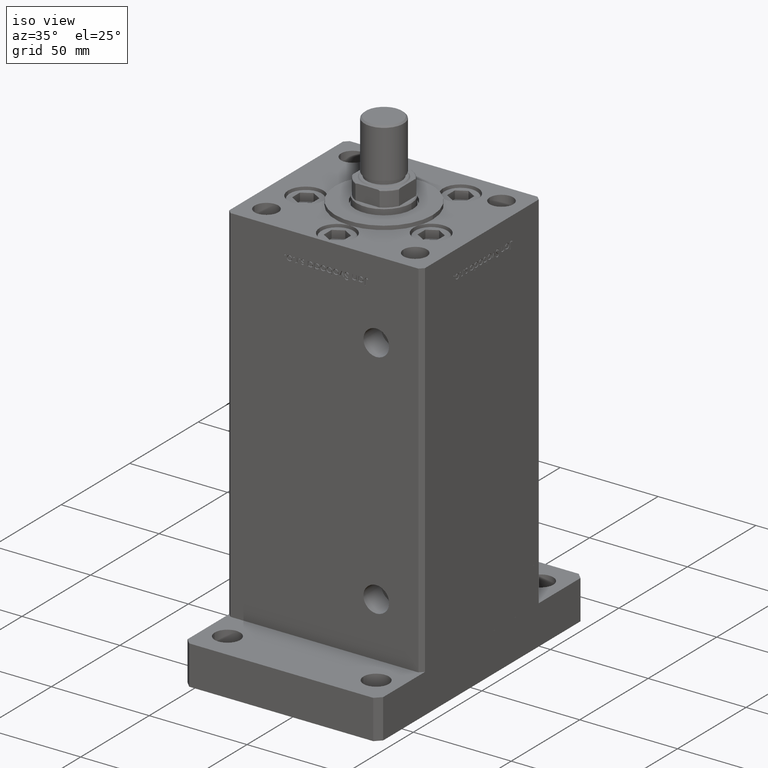
[diagram: clean part render]
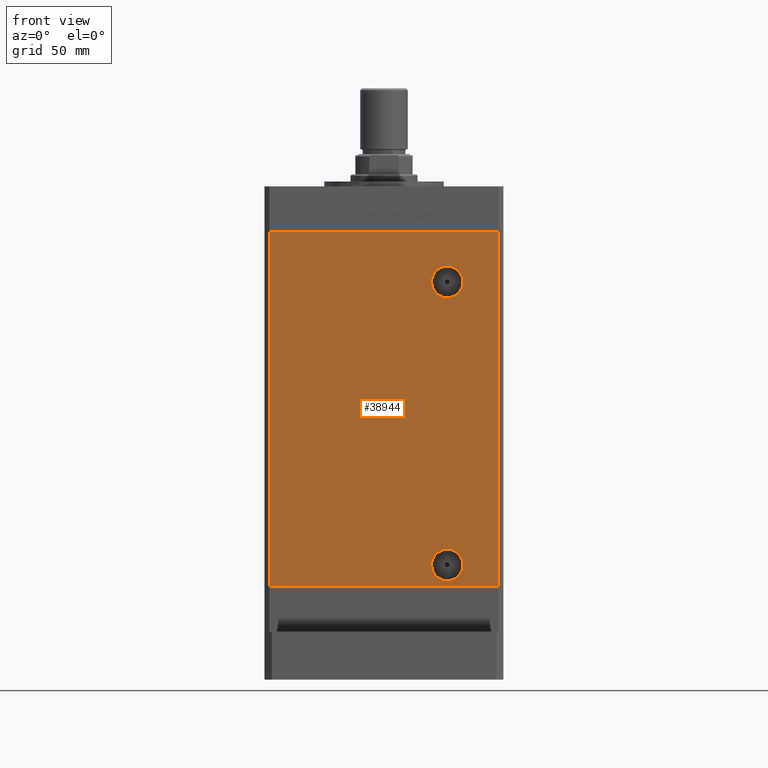
[diagram: tour spotlight — one face highlighted and labeled with its STEP entity id]
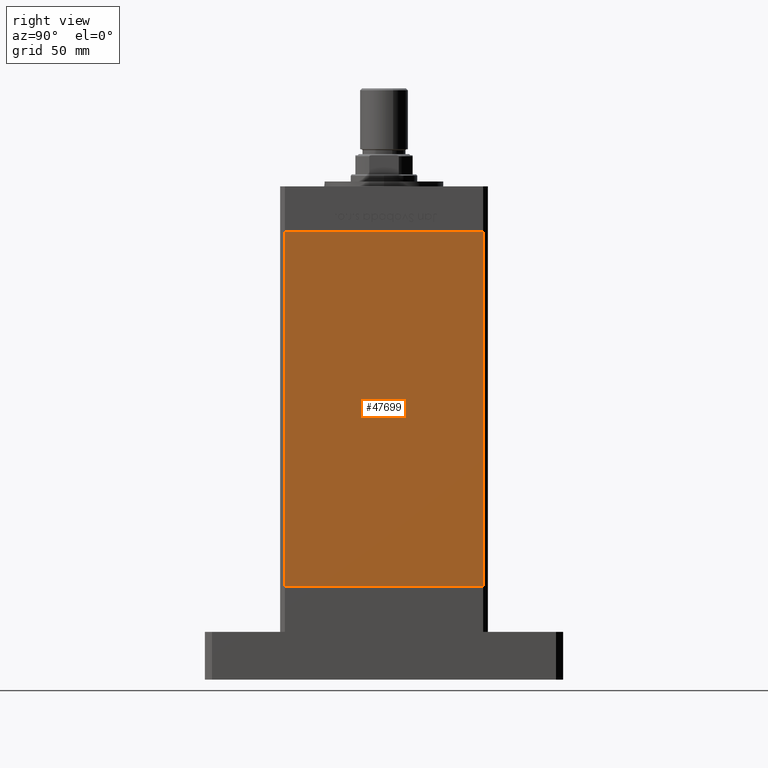
[diagram: tour spotlight — one face highlighted and labeled with its STEP entity id]
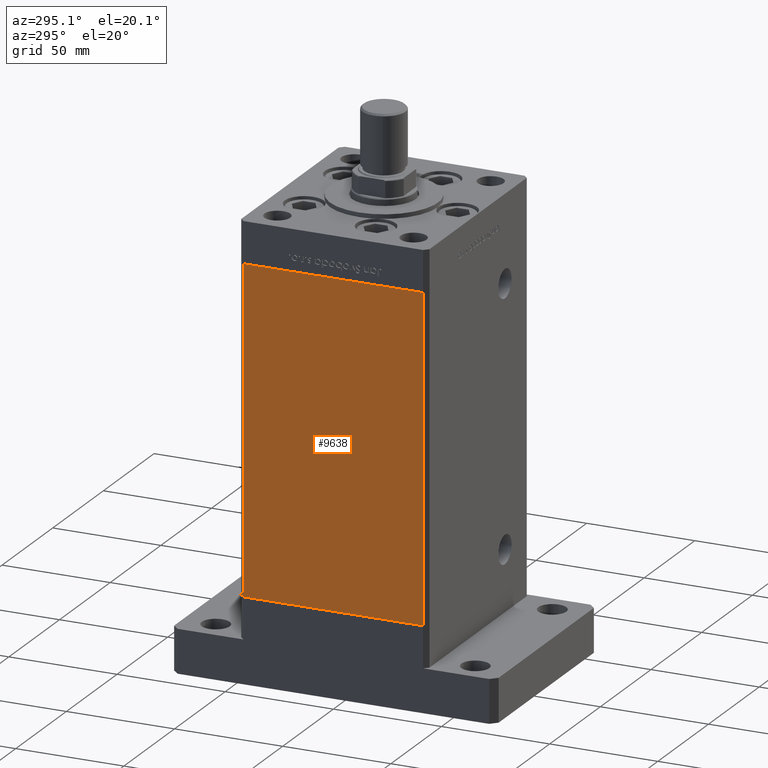
[diagram: tour spotlight — one face highlighted and labeled with its STEP entity id]
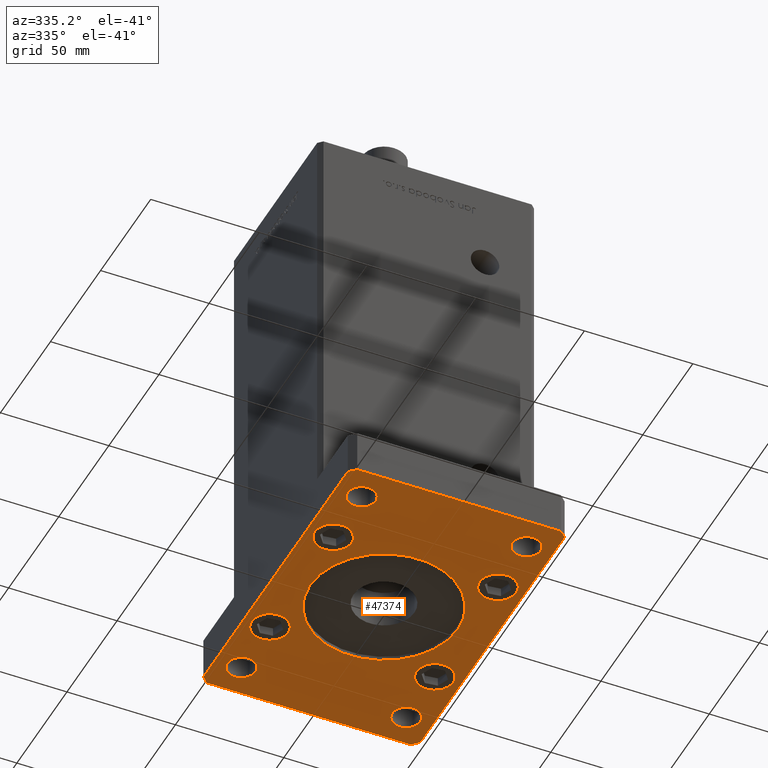
[diagram: tour spotlight — one face highlighted and labeled with its STEP entity id]
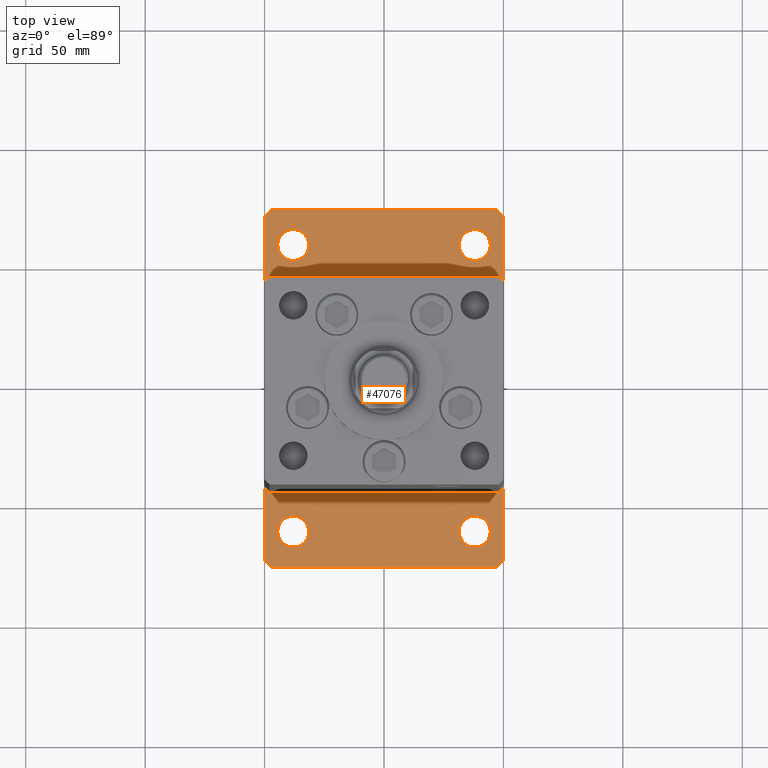
[diagram: tour spotlight — one face highlighted and labeled with its STEP entity id]
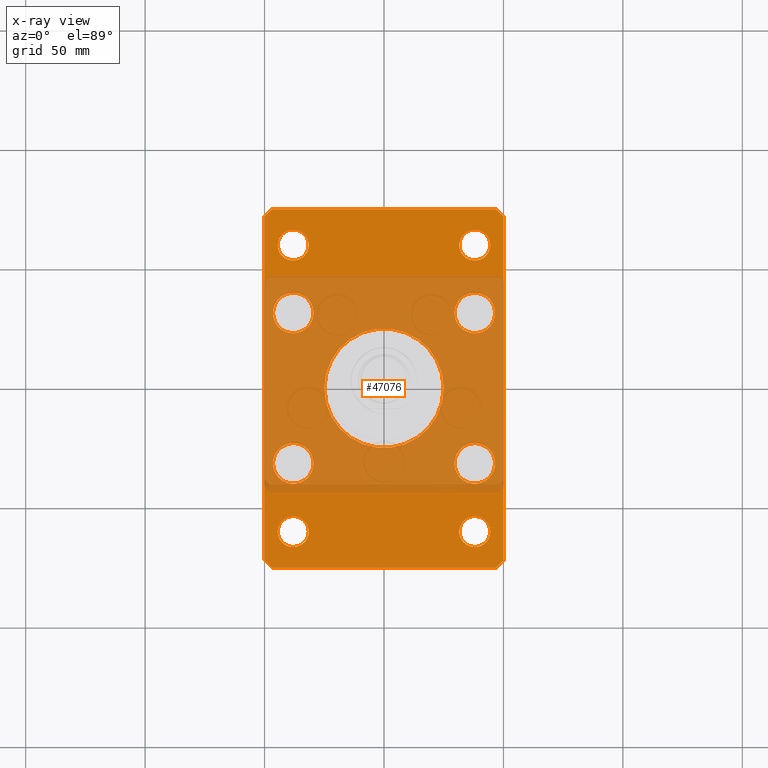
[diagram: x-ray of the same camera — body ghosted, this tour face saturated]
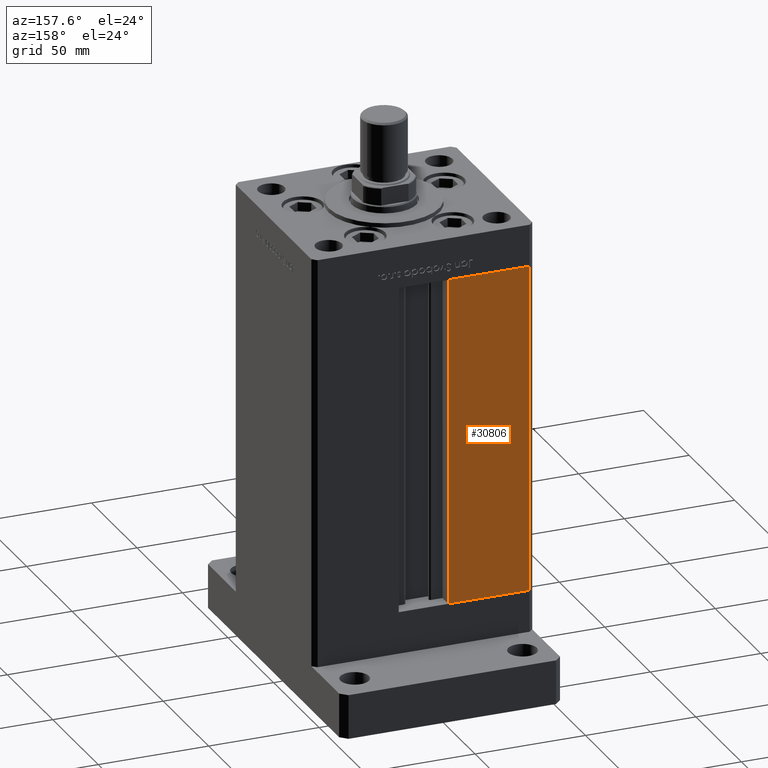
[diagram: tour spotlight — one face highlighted and labeled with its STEP entity id]
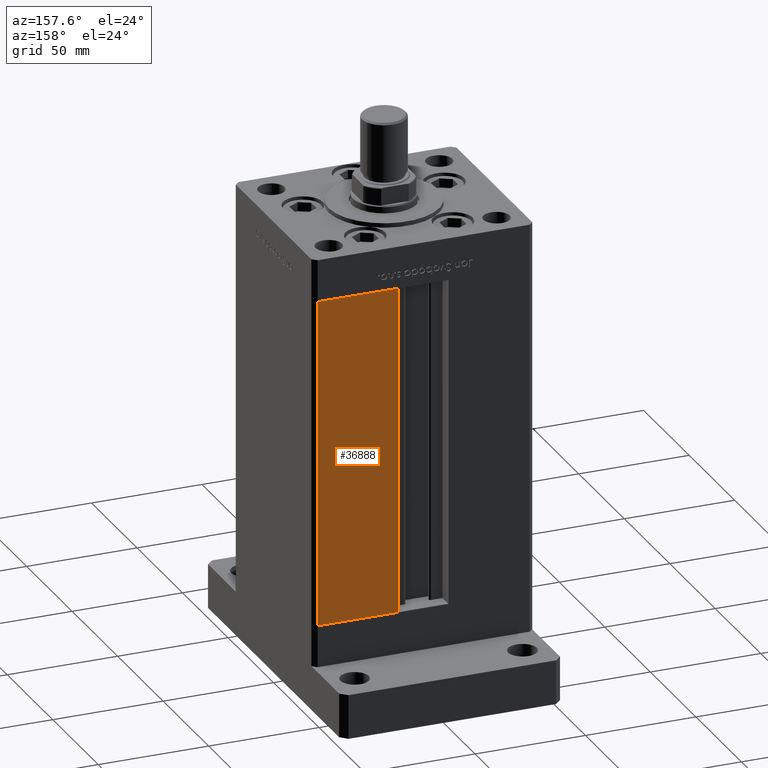
[diagram: tour spotlight — one face highlighted and labeled with its STEP entity id]
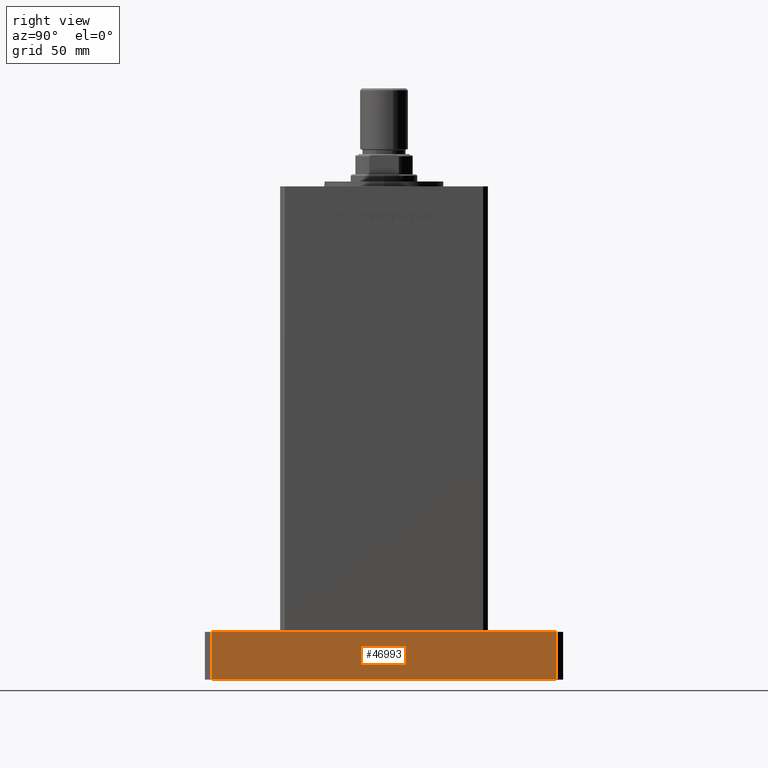
[diagram: tour spotlight — one face highlighted and labeled with its STEP entity id]
A machine part: a face-by-face anatomy tour. The part has 1324 B-rep faces; the first image is the clean iso view, then the 8 largest visible faces are spotlighted one at a time (largest first), each with its STEP entity span.

Face 1 — front view, entity #38944. In plain terms, the highlighted planar face has unit normal (0, 1, 0).
Definition (entity closure, byte-faithful):
#422 = ORIENTED_EDGE ( 'NONE', *, *, #51341, .T. ) ;
#529 = CARTESIAN_POINT ( 'NONE',  ( 47.99999999999998579, -43.50000000000000000, 148.5000000000000000 ) ) ;
#1263 = DIRECTION ( 'NONE',  ( 1.000000000000000000, 0.000000000000000000, 0.000000000000000000 ) ) ;
#1457 = ORIENTED_EDGE ( 'NONE', *, *, #49484, .F. ) ;
#2346 = EDGE_LOOP ( 'NONE', ( #51729, #27952, #35646, #22186 ) ) ;
#3142 = FACE_OUTER_BOUND ( 'NONE', #2346, .T. ) ;
#3757 = CIRCLE ( 'NONE', #39616, 6.579999999999994742 ) ;
#4955 = CARTESIAN_POINT ( 'NONE',  ( 26.49999999999998934, -43.50000000000000000, 9.000000000000007105 ) ) ;
#5256 = EDGE_CURVE ( 'NONE', #17096, #16992, #9739, .T. ) ;
#5755 = CARTESIAN_POINT ( 'NONE',  ( -47.99999999999998579, -43.50000000000000000, 148.5000000000000000 ) ) ;
#6451 = VERTEX_POINT ( 'NONE', #41929 ) ;
#7517 = FACE_BOUND ( 'NONE', #53704, .T. ) ;
#8115 = VERTEX_POINT ( 'NONE', #17853 ) ;
#8519 = DIRECTION ( 'NONE',  ( 0.000000000000000000, -1.000000000000000000, 0.000000000000000000 ) ) ;
#9027 = VERTEX_POINT ( 'NONE', #5755 ) ;
#9449 = EDGE_CURVE ( 'NONE', #20832, #29999, #47251, .T. ) ;
#9670 = VECTOR ( 'NONE', #48576, 1000.000000000000000 ) ;
#9739 = CIRCLE ( 'NONE', #20224, 6.579999999999994742 ) ;
#15574 = VECTOR ( 'NONE', #52336, 1000.000000000000000 ) ;
#15654 = CARTESIAN_POINT ( 'NONE',  ( 26.49999999999997513, -43.50000000000000000, 127.5000000000000000 ) ) ;
#16464 = DIRECTION ( 'NONE',  ( -0.000000000000000000, 1.000000000000000000, -0.000000000000000000 ) ) ;
#16992 = VERTEX_POINT ( 'NONE', #34775 ) ;
#17096 = VERTEX_POINT ( 'NONE', #47898 ) ;
#17605 = DIRECTION ( 'NONE',  ( -0.000000000000000000, 1.000000000000000000, -0.000000000000000000 ) ) ;
#17853 = CARTESIAN_POINT ( 'NONE',  ( 47.99999999999998579, -43.50000000000000000, 148.5000000000000000 ) ) ;
#18391 = CARTESIAN_POINT ( 'NONE',  ( 26.49999999999997513, -43.50000000000000000, 127.5000000000000000 ) ) ;
#18402 = LINE ( 'NONE', #35097, #15574 ) ;
#18478 = DIRECTION ( 'NONE',  ( 0.000000000000000000, -1.000000000000000000, 0.000000000000000000 ) ) ;
#18483 = LINE ( 'NONE', #48038, #9670 ) ;
#18662 = AXIS2_PLACEMENT_3D ( 'NONE', #18391, #17605, #34025 ) ;
#19856 = FACE_BOUND ( 'NONE', #49435, .T. ) ;
#20224 = AXIS2_PLACEMENT_3D ( 'NONE', #4955, #8519, #25230 ) ;
#20832 = VERTEX_POINT ( 'NONE', #45780 ) ;
#20950 = AXIS2_PLACEMENT_3D ( 'NONE', #15654, #16464, #33157 ) ;
#21273 = CARTESIAN_POINT ( 'NONE',  ( 26.49999999999998934, -43.50000000000000000, 9.000000000000007105 ) ) ;
#21358 = CIRCLE ( 'NONE', #18662, 6.579999999999988525 ) ;
#21377 = DIRECTION ( 'NONE',  ( -0.000000000000000000, -0.000000000000000000, -1.000000000000000000 ) ) ;
#22186 = ORIENTED_EDGE ( 'NONE', *, *, #42380, .T. ) ;
#22580 = EDGE_CURVE ( 'NONE', #8115, #29999, #50637, .T. ) ;
#22595 = DIRECTION ( 'NONE',  ( 0.000000000000000000, 0.000000000000000000, -1.000000000000000000 ) ) ;
#24107 = VERTEX_POINT ( 'NONE', #37365 ) ;
#25017 = VECTOR ( 'NONE', #21377, 1000.000000000000000 ) ;
#25230 = DIRECTION ( 'NONE',  ( 0.000000000000000000, 0.000000000000000000, -1.000000000000000000 ) ) ;
#25808 = ORIENTED_EDGE ( 'NONE', *, *, #40139, .T. ) ;
#27353 = VECTOR ( 'NONE', #1263, 1000.000000000000000 ) ;
#27952 = ORIENTED_EDGE ( 'NONE', *, *, #22580, .F. ) ;
#28354 = PLANE ( 'NONE',  #42781 ) ;
#28578 = DIRECTION ( 'NONE',  ( 0.000000000000000000, 1.000000000000000000, 0.000000000000000000 ) ) ;
#29999 = VERTEX_POINT ( 'NONE', #32451 ) ;
#30306 = CARTESIAN_POINT ( 'NONE',  ( -47.99999999999998579, -43.50000000000000000, 0.000000000000000000 ) ) ;
#32411 = CARTESIAN_POINT ( 'NONE',  ( -47.99999999999998579, -43.50000000000000000, 148.5000000000000000 ) ) ;
#32451 = CARTESIAN_POINT ( 'NONE',  ( 47.99999999999998579, -43.50000000000000000, 0.000000000000000000 ) ) ;
#32811 = EDGE_CURVE ( 'NONE', #9027, #8115, #18402, .T. ) ;
#33157 = DIRECTION ( 'NONE',  ( 0.000000000000000000, 0.000000000000000000, -1.000000000000000000 ) ) ;
#34025 = DIRECTION ( 'NONE',  ( 0.000000000000000000, 0.000000000000000000, -1.000000000000000000 ) ) ;
#34775 = CARTESIAN_POINT ( 'NONE',  ( 26.49999999999998934, -43.50000000000000000, 2.420000000000013252 ) ) ;
#35097 = CARTESIAN_POINT ( 'NONE',  ( -47.99999999999998579, -43.50000000000000000, 148.5000000000000000 ) ) ;
#35646 = ORIENTED_EDGE ( 'NONE', *, *, #32811, .F. ) ;
#37365 = CARTESIAN_POINT ( 'NONE',  ( 26.49999999999997513, -43.50000000000000000, 134.0800000000000125 ) ) ;
#37598 = DIRECTION ( 'NONE',  ( 0.000000000000000000, -0.000000000000000000, 1.000000000000000000 ) ) ;
#38944 = ADVANCED_FACE ( 'NONE', ( #7517, #3142, #19856 ), #28354, .F. ) ;
#39616 = AXIS2_PLACEMENT_3D ( 'NONE', #21273, #18478, #22595 ) ;
#40139 = EDGE_CURVE ( 'NONE', #6451, #24107, #47152, .T. ) ;
#41929 = CARTESIAN_POINT ( 'NONE',  ( 26.49999999999997513, -43.50000000000000000, 120.9200000000000159 ) ) ;
#42380 = EDGE_CURVE ( 'NONE', #9027, #20832, #18483, .T. ) ;
#42781 = AXIS2_PLACEMENT_3D ( 'NONE', #32411, #28578, #37598 ) ;
#44924 = ORIENTED_EDGE ( 'NONE', *, *, #5256, .F. ) ;
#45780 = CARTESIAN_POINT ( 'NONE',  ( -47.99999999999998579, -43.50000000000000000, 0.000000000000000000 ) ) ;
#47152 = CIRCLE ( 'NONE', #20950, 6.579999999999988525 ) ;
#47251 = LINE ( 'NONE', #30306, #27353 ) ;
#47898 = CARTESIAN_POINT ( 'NONE',  ( 26.49999999999998934, -43.50000000000000000, 15.58000000000000362 ) ) ;
#48038 = CARTESIAN_POINT ( 'NONE',  ( -47.99999999999998579, -43.50000000000000000, 148.5000000000000000 ) ) ;
#48576 = DIRECTION ( 'NONE',  ( -0.000000000000000000, -0.000000000000000000, -1.000000000000000000 ) ) ;
#49435 = EDGE_LOOP ( 'NONE', ( #25808, #422 ) ) ;
#49484 = EDGE_CURVE ( 'NONE', #16992, #17096, #3757, .T. ) ;
#50637 = LINE ( 'NONE', #529, #25017 ) ;
#51341 = EDGE_CURVE ( 'NONE', #24107, #6451, #21358, .T. ) ;
#51729 = ORIENTED_EDGE ( 'NONE', *, *, #9449, .T. ) ;
#52336 = DIRECTION ( 'NONE',  ( 1.000000000000000000, 0.000000000000000000, 0.000000000000000000 ) ) ;
#53704 = EDGE_LOOP ( 'NONE', ( #1457, #44924 ) ) ;

Face 2 — right view, entity #47699. In plain terms, the highlighted planar face has unit normal (1, -0, 0).
Definition (entity closure, byte-faithful):
#1110 = ORIENTED_EDGE ( 'NONE', *, *, #17898, .T. ) ;
#1948 = CARTESIAN_POINT ( 'NONE',  ( 50.00000000000001421, 41.49999999999999289, 148.5000000000000000 ) ) ;
#8963 = VERTEX_POINT ( 'NONE', #17835 ) ;
#10537 = VECTOR ( 'NONE', #16820, 1000.000000000000000 ) ;
#11582 = EDGE_CURVE ( 'NONE', #46603, #44260, #19676, .T. ) ;
#11720 = CARTESIAN_POINT ( 'NONE',  ( 50.00000000000001421, 41.49999999999999289, 0.000000000000000000 ) ) ;
#13768 = ORIENTED_EDGE ( 'NONE', *, *, #11582, .F. ) ;
#14920 = VECTOR ( 'NONE', #51622, 1000.000000000000000 ) ;
#15743 = CARTESIAN_POINT ( 'NONE',  ( 49.99999999999998579, -41.49999999999999289, 0.000000000000000000 ) ) ;
#16820 = DIRECTION ( 'NONE',  ( -0.000000000000000000, -0.000000000000000000, -1.000000000000000000 ) ) ;
#17833 = EDGE_CURVE ( 'NONE', #40479, #46603, #22348, .T. ) ;
#17835 = CARTESIAN_POINT ( 'NONE',  ( 49.99999999999998579, -41.49999999999999289, 148.5000000000000000 ) ) ;
#17898 = EDGE_CURVE ( 'NONE', #8963, #44260, #41718, .T. ) ;
#18658 = FACE_OUTER_BOUND ( 'NONE', #41169, .T. ) ;
#19676 = LINE ( 'NONE', #11720, #44456 ) ;
#21175 = EDGE_CURVE ( 'NONE', #40479, #8963, #38794, .T. ) ;
#22348 = LINE ( 'NONE', #39030, #14920 ) ;
#22914 = CARTESIAN_POINT ( 'NONE',  ( 50.00000000000001421, 41.49999999999999289, 148.5000000000000000 ) ) ;
#23313 = DIRECTION ( 'NONE',  ( 1.000000000000000000, -3.344045254895050480E-16, 0.000000000000000000 ) ) ;
#25029 = CARTESIAN_POINT ( 'NONE',  ( 49.99999999999998579, -41.49999999999999289, 148.5000000000000000 ) ) ;
#35453 = CARTESIAN_POINT ( 'NONE',  ( 50.00000000000001421, 41.49999999999999289, 148.5000000000000000 ) ) ;
#35615 = PLANE ( 'NONE',  #45671 ) ;
#38794 = LINE ( 'NONE', #22914, #39975 ) ;
#39030 = CARTESIAN_POINT ( 'NONE',  ( 50.00000000000001421, 41.49999999999999289, 148.5000000000000000 ) ) ;
#39057 = DIRECTION ( 'NONE',  ( -3.344045254895050973E-16, -1.000000000000000000, 0.000000000000000000 ) ) ;
#39861 = ORIENTED_EDGE ( 'NONE', *, *, #17833, .F. ) ;
#39975 = VECTOR ( 'NONE', #39057, 1000.000000000000000 ) ;
#40047 = CARTESIAN_POINT ( 'NONE',  ( 50.00000000000001421, 41.49999999999999289, 0.000000000000000000 ) ) ;
#40479 = VERTEX_POINT ( 'NONE', #35453 ) ;
#41169 = EDGE_LOOP ( 'NONE', ( #13768, #39861, #46827, #1110 ) ) ;
#41718 = LINE ( 'NONE', #25029, #10537 ) ;
#44260 = VERTEX_POINT ( 'NONE', #15743 ) ;
#44456 = VECTOR ( 'NONE', #48416, 1000.000000000000000 ) ;
#45671 = AXIS2_PLACEMENT_3D ( 'NONE', #1948, #23313, #46403 ) ;
#46403 = DIRECTION ( 'NONE',  ( 3.344045254895050480E-16, 1.000000000000000000, 0.000000000000000000 ) ) ;
#46603 = VERTEX_POINT ( 'NONE', #40047 ) ;
#46827 = ORIENTED_EDGE ( 'NONE', *, *, #21175, .T. ) ;
#47699 = ADVANCED_FACE ( 'NONE', ( #18658 ), #35615, .T. ) ;
#48416 = DIRECTION ( 'NONE',  ( -3.344045254895050973E-16, -1.000000000000000000, 0.000000000000000000 ) ) ;
#51622 = DIRECTION ( 'NONE',  ( -0.000000000000000000, -0.000000000000000000, -1.000000000000000000 ) ) ;

Face 3 — auxiliary view, entity #9638. In plain terms, the highlighted planar face has unit normal (1, 0, 0).
Definition (entity closure, byte-faithful):
#22 = CARTESIAN_POINT ( 'NONE',  ( -49.99999999999998579, -41.49999999999999289, 148.5000000000000000 ) ) ;
#393 = LINE ( 'NONE', #50497, #3030 ) ;
#560 = CARTESIAN_POINT ( 'NONE',  ( -50.00000000000001421, 41.49999999999999289, 148.5000000000000000 ) ) ;
#2354 = CARTESIAN_POINT ( 'NONE',  ( -50.00000000000001421, 41.49999999999999289, 0.000000000000000000 ) ) ;
#3030 = VECTOR ( 'NONE', #17117, 1000.000000000000000 ) ;
#5021 = VERTEX_POINT ( 'NONE', #24552 ) ;
#7234 = AXIS2_PLACEMENT_3D ( 'NONE', #21153, #34542, #17305 ) ;
#7384 = ORIENTED_EDGE ( 'NONE', *, *, #48369, .T. ) ;
#8756 = VERTEX_POINT ( 'NONE', #19509 ) ;
#9320 = LINE ( 'NONE', #560, #12650 ) ;
#9638 = ADVANCED_FACE ( 'NONE', ( #30177 ), #29629, .F. ) ;
#11185 = ORIENTED_EDGE ( 'NONE', *, *, #16434, .F. ) ;
#12650 = VECTOR ( 'NONE', #26027, 1000.000000000000000 ) ;
#13026 = CARTESIAN_POINT ( 'NONE',  ( -50.00000000000001421, 41.49999999999999289, 148.5000000000000000 ) ) ;
#14942 = VERTEX_POINT ( 'NONE', #13026 ) ;
#16434 = EDGE_CURVE ( 'NONE', #5021, #8756, #24680, .T. ) ;
#17117 = DIRECTION ( 'NONE',  ( -0.000000000000000000, -0.000000000000000000, -1.000000000000000000 ) ) ;
#17305 = DIRECTION ( 'NONE',  ( -3.344045254895050480E-16, 1.000000000000000000, 0.000000000000000000 ) ) ;
#17629 = EDGE_LOOP ( 'NONE', ( #7384, #11185, #30967, #26852 ) ) ;
#19509 = CARTESIAN_POINT ( 'NONE',  ( -49.99999999999998579, -41.49999999999999289, 0.000000000000000000 ) ) ;
#20026 = DIRECTION ( 'NONE',  ( -0.000000000000000000, -0.000000000000000000, -1.000000000000000000 ) ) ;
#21153 = CARTESIAN_POINT ( 'NONE',  ( -50.00000000000001421, 41.49999999999999289, 148.5000000000000000 ) ) ;
#22787 = VECTOR ( 'NONE', #20026, 1000.000000000000000 ) ;
#24259 = DIRECTION ( 'NONE',  ( 3.344045254895050973E-16, -1.000000000000000000, 0.000000000000000000 ) ) ;
#24552 = CARTESIAN_POINT ( 'NONE',  ( -49.99999999999998579, -41.49999999999999289, 148.5000000000000000 ) ) ;
#24680 = LINE ( 'NONE', #22, #22787 ) ;
#25771 = VERTEX_POINT ( 'NONE', #48388 ) ;
#26027 = DIRECTION ( 'NONE',  ( 3.344045254895050973E-16, -1.000000000000000000, 0.000000000000000000 ) ) ;
#26852 = ORIENTED_EDGE ( 'NONE', *, *, #27787, .T. ) ;
#27355 = VECTOR ( 'NONE', #24259, 1000.000000000000000 ) ;
#27787 = EDGE_CURVE ( 'NONE', #14942, #25771, #393, .T. ) ;
#28114 = LINE ( 'NONE', #2354, #27355 ) ;
#29629 = PLANE ( 'NONE',  #7234 ) ;
#30177 = FACE_OUTER_BOUND ( 'NONE', #17629, .T. ) ;
#30967 = ORIENTED_EDGE ( 'NONE', *, *, #53866, .F. ) ;
#34542 = DIRECTION ( 'NONE',  ( 1.000000000000000000, 3.344045254895050480E-16, -0.000000000000000000 ) ) ;
#48369 = EDGE_CURVE ( 'NONE', #25771, #8756, #28114, .T. ) ;
#48388 = CARTESIAN_POINT ( 'NONE',  ( -50.00000000000001421, 41.49999999999999289, 0.000000000000000000 ) ) ;
#50497 = CARTESIAN_POINT ( 'NONE',  ( -50.00000000000001421, 41.49999999999999289, 148.5000000000000000 ) ) ;
#53866 = EDGE_CURVE ( 'NONE', #14942, #5021, #9320, .T. ) ;

Face 4 — auxiliary view, entity #47374. In plain terms, the highlighted planar face has unit normal (0, 0, 1).
Definition (entity closure, byte-faithful):
#246 = CIRCLE ( 'NONE', #28253, 6.499999999999999112 ) ;
#346 = LINE ( 'NONE', #16795, #43943 ) ;
#348 = DIRECTION ( 'NONE',  ( 0.000000000000000000, 0.000000000000000000, 1.000000000000000000 ) ) ;
#886 = AXIS2_PLACEMENT_3D ( 'NONE', #32144, #27776, #45011 ) ;
#1385 = CARTESIAN_POINT ( 'NONE',  ( 50.00000000000000000, 72.00000000000001421, 0.000000000000000000 ) ) ;
#1728 = ORIENTED_EDGE ( 'NONE', *, *, #16103, .T. ) ;
#1780 = EDGE_CURVE ( 'NONE', #2269, #11883, #30630, .T. ) ;
#1808 = DIRECTION ( 'NONE',  ( -1.000000000000000000, 0.000000000000000000, 0.000000000000000000 ) ) ;
#1852 = AXIS2_PLACEMENT_3D ( 'NONE', #31905, #19038, #52433 ) ;
#2269 = VERTEX_POINT ( 'NONE', #33824 ) ;
#2605 = DIRECTION ( 'NONE',  ( 1.000000000000000000, 0.000000000000000000, 0.000000000000000000 ) ) ;
#3291 = CIRCLE ( 'NONE', #7675, 6.499999999999999112 ) ;
#3754 = LINE ( 'NONE', #25121, #17774 ) ;
#3773 = ORIENTED_EDGE ( 'NONE', *, *, #53172, .T. ) ;
#3876 = CIRCLE ( 'NONE', #17038, 8.500000000000000000 ) ;
#3896 = AXIS2_PLACEMENT_3D ( 'NONE', #23782, #15302, #10638 ) ;
#3920 = VERTEX_POINT ( 'NONE', #34378 ) ;
#4264 = VERTEX_POINT ( 'NONE', #25560 ) ;
#4449 = ORIENTED_EDGE ( 'NONE', *, *, #30656, .F. ) ;
#4816 = EDGE_LOOP ( 'NONE', ( #33461, #53722, #28015, #52197, #48895, #45604, #14162, #4449 ) ) ;
#5892 = CARTESIAN_POINT ( 'NONE',  ( 38.00000000000000000, 59.99999999999998579, 0.000000000000000000 ) ) ;
#5914 = DIRECTION ( 'NONE',  ( 0.000000000000000000, 0.000000000000000000, 1.000000000000000000 ) ) ;
#6190 = CARTESIAN_POINT ( 'NONE',  ( 44.50000000000000000, 59.99999999999998579, 0.000000000000000000 ) ) ;
#6505 = CARTESIAN_POINT ( 'NONE',  ( 37.99999999999999289, 31.49999999999999289, 0.000000000000000000 ) ) ;
#6518 = VERTEX_POINT ( 'NONE', #11493 ) ;
#6744 = DIRECTION ( 'NONE',  ( 0.000000000000000000, 1.000000000000000000, 0.000000000000000000 ) ) ;
#6822 = CIRCLE ( 'NONE', #54026, 8.499999999999992895 ) ;
#6911 = EDGE_CURVE ( 'NONE', #48869, #28991, #32538, .T. ) ;
#6970 = VECTOR ( 'NONE', #25866, 999.9999999999998863 ) ;
#6983 = CARTESIAN_POINT ( 'NONE',  ( -38.00000000000000711, -31.50000000000000000, 0.000000000000000000 ) ) ;
#7236 = AXIS2_PLACEMENT_3D ( 'NONE', #30579, #26468, #1808 ) ;
#7356 = EDGE_CURVE ( 'NONE', #38331, #6518, #36411, .T. ) ;
#7501 = CARTESIAN_POINT ( 'NONE',  ( 47.00000000000002132, 75.00000000000002842, 0.000000000000000000 ) ) ;
#7675 = AXIS2_PLACEMENT_3D ( 'NONE', #5892, #48057, #27537 ) ;
#8061 = CARTESIAN_POINT ( 'NONE',  ( 47.00000000000002132, 75.00000000000002842, 0.000000000000000000 ) ) ;
#8290 = CARTESIAN_POINT ( 'NONE',  ( -46.50000000000000711, 31.50000000000000000, 0.000000000000000000 ) ) ;
#8596 = DIRECTION ( 'NONE',  ( 0.000000000000000000, 0.000000000000000000, 1.000000000000000000 ) ) ;
#8606 = LINE ( 'NONE', #42020, #6970 ) ;
#8851 = CIRCLE ( 'NONE', #1852, 8.499999999999992895 ) ;
#9033 = EDGE_CURVE ( 'NONE', #9154, #4264, #246, .T. ) ;
#9154 = VERTEX_POINT ( 'NONE', #33100 ) ;
#9236 = FACE_BOUND ( 'NONE', #27505, .T. ) ;
#9256 = EDGE_CURVE ( 'NONE', #50288, #37551, #50083, .T. ) ;
#9862 = AXIS2_PLACEMENT_3D ( 'NONE', #6983, #14671, #2605 ) ;
#10030 = FACE_BOUND ( 'NONE', #47220, .T. ) ;
#10442 = VERTEX_POINT ( 'NONE', #33807 ) ;
#10638 = DIRECTION ( 'NONE',  ( 1.000000000000000000, 0.000000000000000000, 0.000000000000000000 ) ) ;
#10671 = DIRECTION ( 'NONE',  ( 1.000000000000000000, 0.000000000000000000, 0.000000000000000000 ) ) ;
#10895 = VERTEX_POINT ( 'NONE', #32958 ) ;
#11015 = EDGE_LOOP ( 'NONE', ( #16496, #16598 ) ) ;
#11145 = CIRCLE ( 'NONE', #43483, 6.499999999999999112 ) ;
#11244 = EDGE_CURVE ( 'NONE', #40149, #20537, #40536, .T. ) ;
#11256 = DIRECTION ( 'NONE',  ( -1.000000000000000000, 0.000000000000000000, 0.000000000000000000 ) ) ;
#11493 = CARTESIAN_POINT ( 'NONE',  ( -49.99999999999998579, -72.00000000000001421, 0.000000000000000000 ) ) ;
#11883 = VERTEX_POINT ( 'NONE', #6190 ) ;
#12787 = ORIENTED_EDGE ( 'NONE', *, *, #6911, .T. ) ;
#13254 = DIRECTION ( 'NONE',  ( -1.000000000000000000, 0.000000000000000000, 0.000000000000000000 ) ) ;
#13881 = FACE_BOUND ( 'NONE', #14493, .T. ) ;
#14162 = ORIENTED_EDGE ( 'NONE', *, *, #49323, .F. ) ;
#14493 = EDGE_LOOP ( 'NONE', ( #47451, #45059 ) ) ;
#14671 = DIRECTION ( 'NONE',  ( 0.000000000000000000, 0.000000000000000000, 1.000000000000000000 ) ) ;
#14881 = CARTESIAN_POINT ( 'NONE',  ( 34.00000000000000000, 4.163799117101000559E-15, 0.000000000000000000 ) ) ;
#15060 = DIRECTION ( 'NONE',  ( 0.000000000000000000, 0.000000000000000000, 1.000000000000000000 ) ) ;
#15150 = CIRCLE ( 'NONE', #9862, 8.500000000000000000 ) ;
#15302 = DIRECTION ( 'NONE',  ( 0.000000000000000000, 0.000000000000000000, 1.000000000000000000 ) ) ;
#15609 = DIRECTION ( 'NONE',  ( 1.927470528863118802E-16, -1.000000000000000000, 0.000000000000000000 ) ) ;
#16103 = EDGE_CURVE ( 'NONE', #10442, #31069, #45467, .T. ) ;
#16496 = ORIENTED_EDGE ( 'NONE', *, *, #9256, .T. ) ;
#16592 = DIRECTION ( 'NONE',  ( 0.000000000000000000, 0.000000000000000000, 1.000000000000000000 ) ) ;
#16598 = ORIENTED_EDGE ( 'NONE', *, *, #19634, .T. ) ;
#16795 = CARTESIAN_POINT ( 'NONE',  ( -47.00000000000000000, -75.00000000000000000, 0.000000000000000000 ) ) ;
#16845 = VERTEX_POINT ( 'NONE', #53885 ) ;
#17038 = AXIS2_PLACEMENT_3D ( 'NONE', #45606, #16592, #49981 ) ;
#17774 = VECTOR ( 'NONE', #33613, 1000.000000000000114 ) ;
#17875 = DIRECTION ( 'NONE',  ( 1.000000000000000000, 0.000000000000000000, 0.000000000000000000 ) ) ;
#17988 = FACE_BOUND ( 'NONE', #47135, .T. ) ;
#18252 = FACE_BOUND ( 'NONE', #11015, .T. ) ;
#18568 = EDGE_CURVE ( 'NONE', #11883, #2269, #3291, .T. ) ;
#18797 = DIRECTION ( 'NONE',  ( 1.000000000000000000, 0.000000000000000000, -0.000000000000000000 ) ) ;
#18982 = ORIENTED_EDGE ( 'NONE', *, *, #9033, .T. ) ;
#19038 = DIRECTION ( 'NONE',  ( 0.000000000000000000, 0.000000000000000000, 1.000000000000000000 ) ) ;
#19634 = EDGE_CURVE ( 'NONE', #37551, #50288, #6822, .T. ) ;
#19996 = CARTESIAN_POINT ( 'NONE',  ( 50.00000000000000000, 72.00000000000001421, 0.000000000000000000 ) ) ;
#20386 = CARTESIAN_POINT ( 'NONE',  ( -37.99999999999997868, -60.00000000000000711, 0.000000000000000000 ) ) ;
#20537 = VERTEX_POINT ( 'NONE', #8061 ) ;
#20722 = VERTEX_POINT ( 'NONE', #14881 ) ;
#20933 = CARTESIAN_POINT ( 'NONE',  ( 46.49999999999998579, -31.49999999999999289, 0.000000000000000000 ) ) ;
#21394 = EDGE_LOOP ( 'NONE', ( #29135, #37073 ) ) ;
#21552 = ORIENTED_EDGE ( 'NONE', *, *, #30141, .T. ) ;
#21786 = ORIENTED_EDGE ( 'NONE', *, *, #26013, .T. ) ;
#21819 = EDGE_CURVE ( 'NONE', #6518, #45896, #35889, .T. ) ;
#21902 = AXIS2_PLACEMENT_3D ( 'NONE', #40000, #48485, #44107 ) ;
#22681 = DIRECTION ( 'NONE',  ( 1.000000000000000000, 0.000000000000000000, 0.000000000000000000 ) ) ;
#22776 = CARTESIAN_POINT ( 'NONE',  ( 0.000000000000000000, 0.000000000000000000, 0.000000000000000000 ) ) ;
#22933 = EDGE_LOOP ( 'NONE', ( #49155, #31884 ) ) ;
#23222 = DIRECTION ( 'NONE',  ( 0.000000000000000000, 0.000000000000000000, 1.000000000000000000 ) ) ;
#23782 = CARTESIAN_POINT ( 'NONE',  ( -38.00000000000000711, -31.50000000000000000, 0.000000000000000000 ) ) ;
#24052 = VERTEX_POINT ( 'NONE', #44781 ) ;
#24769 = DIRECTION ( 'NONE',  ( 1.000000000000000000, 0.000000000000000000, 0.000000000000000000 ) ) ;
#25121 = CARTESIAN_POINT ( 'NONE',  ( 47.00000000000001421, -74.99999999999988631, 0.000000000000000000 ) ) ;
#25560 = CARTESIAN_POINT ( 'NONE',  ( 44.49999999999997868, -60.00000000000000711, 0.000000000000000000 ) ) ;
#25866 = DIRECTION ( 'NONE',  ( -0.7071067811865425767, -0.7071067811865525687, 0.000000000000000000 ) ) ;
#26013 = EDGE_CURVE ( 'NONE', #3920, #16845, #11145, .T. ) ;
#26174 = EDGE_CURVE ( 'NONE', #20537, #10895, #53225, .T. ) ;
#26468 = DIRECTION ( 'NONE',  ( 0.000000000000000000, 0.000000000000000000, -1.000000000000000000 ) ) ;
#26724 = ORIENTED_EDGE ( 'NONE', *, *, #44208, .T. ) ;
#26744 = PLANE ( 'NONE',  #48280 ) ;
#26925 = VERTEX_POINT ( 'NONE', #45033 ) ;
#27373 = VERTEX_POINT ( 'NONE', #27948 ) ;
#27424 = DIRECTION ( 'NONE',  ( 0.000000000000000000, 0.000000000000000000, -1.000000000000000000 ) ) ;
#27462 = DIRECTION ( 'NONE',  ( 1.000000000000000000, 0.000000000000000000, 0.000000000000000000 ) ) ;
#27505 = EDGE_LOOP ( 'NONE', ( #29800, #21786 ) ) ;
#27508 = CIRCLE ( 'NONE', #30138, 8.499999999999992895 ) ;
#27537 = DIRECTION ( 'NONE',  ( 1.000000000000000000, 0.000000000000000000, 0.000000000000000000 ) ) ;
#27731 = CARTESIAN_POINT ( 'NONE',  ( -50.00000000000001421, 72.00000000000000000, 0.000000000000000000 ) ) ;
#27744 = VERTEX_POINT ( 'NONE', #42294 ) ;
#27776 = DIRECTION ( 'NONE',  ( 0.000000000000000000, 0.000000000000000000, 1.000000000000000000 ) ) ;
#27948 = CARTESIAN_POINT ( 'NONE',  ( -46.50000000000000711, -31.50000000000000000, 0.000000000000000000 ) ) ;
#28015 = ORIENTED_EDGE ( 'NONE', *, *, #7356, .F. ) ;
#28192 = EDGE_CURVE ( 'NONE', #4264, #9154, #30149, .T. ) ;
#28253 = AXIS2_PLACEMENT_3D ( 'NONE', #39159, #15060, #10671 ) ;
#28500 = DIRECTION ( 'NONE',  ( 0.7071067811865474617, -0.7071067811865474617, 0.000000000000000000 ) ) ;
#28991 = VERTEX_POINT ( 'NONE', #51298 ) ;
#28998 = CIRCLE ( 'NONE', #42978, 6.499999999999999112 ) ;
#29135 = ORIENTED_EDGE ( 'NONE', *, *, #1780, .T. ) ;
#29800 = ORIENTED_EDGE ( 'NONE', *, *, #38317, .T. ) ;
#30028 = ORIENTED_EDGE ( 'NONE', *, *, #30999, .T. ) ;
#30138 = AXIS2_PLACEMENT_3D ( 'NONE', #46623, #348, #17875 ) ;
#30141 = EDGE_CURVE ( 'NONE', #49393, #27373, #15150, .T. ) ;
#30149 = CIRCLE ( 'NONE', #38038, 6.499999999999999112 ) ;
#30579 = CARTESIAN_POINT ( 'NONE',  ( 0.000000000000000000, 0.000000000000000000, 0.000000000000000000 ) ) ;
#30630 = CIRCLE ( 'NONE', #21902, 6.499999999999999112 ) ;
#30656 = EDGE_CURVE ( 'NONE', #24052, #26925, #3754, .T. ) ;
#30867 = CIRCLE ( 'NONE', #7236, 34.00000000000000000 ) ;
#30907 = EDGE_CURVE ( 'NONE', #20722, #42965, #30867, .T. ) ;
#30999 = EDGE_CURVE ( 'NONE', #27373, #49393, #31892, .T. ) ;
#31069 = VERTEX_POINT ( 'NONE', #39664 ) ;
#31819 = CARTESIAN_POINT ( 'NONE',  ( 46.49999999999998579, 31.49999999999999289, 0.000000000000000000 ) ) ;
#31884 = ORIENTED_EDGE ( 'NONE', *, *, #30907, .F. ) ;
#31892 = CIRCLE ( 'NONE', #3896, 8.500000000000000000 ) ;
#31905 = CARTESIAN_POINT ( 'NONE',  ( 37.99999999999999289, -31.49999999999999289, 0.000000000000000000 ) ) ;
#32144 = CARTESIAN_POINT ( 'NONE',  ( -37.99999999999997868, -60.00000000000000711, 0.000000000000000000 ) ) ;
#32538 = CIRCLE ( 'NONE', #43861, 8.500000000000000000 ) ;
#32638 = DIRECTION ( 'NONE',  ( 0.000000000000000000, 0.000000000000000000, 1.000000000000000000 ) ) ;
#32851 = EDGE_LOOP ( 'NONE', ( #12787, #3773 ) ) ;
#32958 = CARTESIAN_POINT ( 'NONE',  ( -47.00000000000002842, 75.00000000000002842, 0.000000000000000000 ) ) ;
#33100 = CARTESIAN_POINT ( 'NONE',  ( 31.49999999999997868, -60.00000000000000711, 0.000000000000000000 ) ) ;
#33461 = ORIENTED_EDGE ( 'NONE', *, *, #48873, .F. ) ;
#33574 = CARTESIAN_POINT ( 'NONE',  ( -29.50000000000000711, -31.50000000000000000, 0.000000000000000000 ) ) ;
#33613 = DIRECTION ( 'NONE',  ( 0.7071067811865459074, 0.7071067811865491270, 0.000000000000000000 ) ) ;
#33807 = CARTESIAN_POINT ( 'NONE',  ( -44.49999999999997868, -60.00000000000000711, 0.000000000000000000 ) ) ;
#33824 = CARTESIAN_POINT ( 'NONE',  ( 31.50000000000000000, 59.99999999999998579, 0.000000000000000000 ) ) ;
#34378 = CARTESIAN_POINT ( 'NONE',  ( -31.49999999999999289, 59.99999999999999289, 0.000000000000000000 ) ) ;
#34689 = FACE_BOUND ( 'NONE', #38861, .T. ) ;
#35889 = LINE ( 'NONE', #52590, #46004 ) ;
#35955 = EDGE_CURVE ( 'NONE', #10895, #38331, #8606, .T. ) ;
#36411 = LINE ( 'NONE', #53105, #53472 ) ;
#36548 = DIRECTION ( 'NONE',  ( 1.000000000000000000, 0.000000000000000000, 0.000000000000000000 ) ) ;
#37039 = DIRECTION ( 'NONE',  ( 1.000000000000000000, 1.181088324069315250E-15, 0.000000000000000000 ) ) ;
#37073 = ORIENTED_EDGE ( 'NONE', *, *, #18568, .T. ) ;
#37551 = VERTEX_POINT ( 'NONE', #31819 ) ;
#38038 = AXIS2_PLACEMENT_3D ( 'NONE', #44145, #48520, #27462 ) ;
#38213 = VERTEX_POINT ( 'NONE', #20933 ) ;
#38317 = EDGE_CURVE ( 'NONE', #16845, #3920, #49888, .T. ) ;
#38331 = VERTEX_POINT ( 'NONE', #27731 ) ;
#38861 = EDGE_LOOP ( 'NONE', ( #30028, #21552 ) ) ;
#39061 = FACE_BOUND ( 'NONE', #21394, .T. ) ;
#39159 = CARTESIAN_POINT ( 'NONE',  ( 37.99999999999997868, -60.00000000000000711, 0.000000000000000000 ) ) ;
#39297 = DIRECTION ( 'NONE',  ( 0.000000000000000000, 0.000000000000000000, 1.000000000000000000 ) ) ;
#39664 = CARTESIAN_POINT ( 'NONE',  ( -31.49999999999997868, -60.00000000000000711, 0.000000000000000000 ) ) ;
#39838 = CARTESIAN_POINT ( 'NONE',  ( -37.99999999999999289, 59.99999999999999289, 0.000000000000000000 ) ) ;
#40000 = CARTESIAN_POINT ( 'NONE',  ( 38.00000000000000000, 59.99999999999998579, 0.000000000000000000 ) ) ;
#40149 = VERTEX_POINT ( 'NONE', #1385 ) ;
#40536 = LINE ( 'NONE', #19996, #52311 ) ;
#40920 = DIRECTION ( 'NONE',  ( 0.000000000000000000, 0.000000000000000000, 1.000000000000000000 ) ) ;
#42020 = CARTESIAN_POINT ( 'NONE',  ( -47.00000000000002842, 75.00000000000002842, 0.000000000000000000 ) ) ;
#42294 = CARTESIAN_POINT ( 'NONE',  ( 29.49999999999999645, -31.49999999999999289, 0.000000000000000000 ) ) ;
#42901 = FACE_OUTER_BOUND ( 'NONE', #4816, .T. ) ;
#42965 = VERTEX_POINT ( 'NONE', #45629 ) ;
#42978 = AXIS2_PLACEMENT_3D ( 'NONE', #20386, #40920, #24769 ) ;
#43397 = DIRECTION ( 'NONE',  ( 1.000000000000000000, 0.000000000000000000, 0.000000000000000000 ) ) ;
#43425 = CARTESIAN_POINT ( 'NONE',  ( 0.000000000000000000, 0.000000000000000000, 0.000000000000000000 ) ) ;
#43483 = AXIS2_PLACEMENT_3D ( 'NONE', #39838, #39297, #43397 ) ;
#43861 = AXIS2_PLACEMENT_3D ( 'NONE', #46377, #8596, #45833 ) ;
#43939 = AXIS2_PLACEMENT_3D ( 'NONE', #6505, #23222, #22681 ) ;
#43943 = VECTOR ( 'NONE', #37039, 1000.000000000000000 ) ;
#44030 = EDGE_CURVE ( 'NONE', #38213, #27744, #8851, .T. ) ;
#44107 = DIRECTION ( 'NONE',  ( 1.000000000000000000, 0.000000000000000000, 0.000000000000000000 ) ) ;
#44145 = CARTESIAN_POINT ( 'NONE',  ( 37.99999999999997868, -60.00000000000000711, 0.000000000000000000 ) ) ;
#44208 = EDGE_CURVE ( 'NONE', #31069, #10442, #28998, .T. ) ;
#44264 = CARTESIAN_POINT ( 'NONE',  ( 50.00000000000000000, -71.99999999999988631, 0.000000000000000000 ) ) ;
#44413 = CARTESIAN_POINT ( 'NONE',  ( -47.00000000000000000, -75.00000000000000000, 0.000000000000000000 ) ) ;
#44418 = DIRECTION ( 'NONE',  ( 1.000000000000000000, 0.000000000000000000, 0.000000000000000000 ) ) ;
#44781 = CARTESIAN_POINT ( 'NONE',  ( 47.00000000000001421, -74.99999999999988631, 0.000000000000000000 ) ) ;
#45011 = DIRECTION ( 'NONE',  ( 1.000000000000000000, 0.000000000000000000, 0.000000000000000000 ) ) ;
#45033 = CARTESIAN_POINT ( 'NONE',  ( 50.00000000000000000, -71.99999999999988631, 0.000000000000000000 ) ) ;
#45059 = ORIENTED_EDGE ( 'NONE', *, *, #44030, .T. ) ;
#45173 = DIRECTION ( 'NONE',  ( -0.7071067811865435759, 0.7071067811865515695, 0.000000000000000000 ) ) ;
#45297 = CARTESIAN_POINT ( 'NONE',  ( 37.99999999999999289, 31.49999999999999289, 0.000000000000000000 ) ) ;
#45467 = CIRCLE ( 'NONE', #886, 6.499999999999999112 ) ;
#45604 = ORIENTED_EDGE ( 'NONE', *, *, #11244, .F. ) ;
#45606 = CARTESIAN_POINT ( 'NONE',  ( -38.00000000000000711, 31.50000000000000000, 0.000000000000000000 ) ) ;
#45629 = CARTESIAN_POINT ( 'NONE',  ( -34.00000000000000000, 0.000000000000000000, 0.000000000000000000 ) ) ;
#45833 = DIRECTION ( 'NONE',  ( 1.000000000000000000, 0.000000000000000000, 0.000000000000000000 ) ) ;
#45896 = VERTEX_POINT ( 'NONE', #44413 ) ;
#46004 = VECTOR ( 'NONE', #28500, 1000.000000000000114 ) ;
#46377 = CARTESIAN_POINT ( 'NONE',  ( -38.00000000000000711, 31.50000000000000000, 0.000000000000000000 ) ) ;
#46623 = CARTESIAN_POINT ( 'NONE',  ( 37.99999999999999289, -31.49999999999999289, 0.000000000000000000 ) ) ;
#46650 = AXIS2_PLACEMENT_3D ( 'NONE', #22776, #27424, #11256 ) ;
#46748 = FACE_BOUND ( 'NONE', #22933, .T. ) ;
#47135 = EDGE_LOOP ( 'NONE', ( #1728, #26724 ) ) ;
#47220 = EDGE_LOOP ( 'NONE', ( #18982, #53012 ) ) ;
#47374 = ADVANCED_FACE ( 'NONE', ( #46748, #42901, #17988, #39061, #9236, #34689, #13881, #18252, #47543, #10030 ), #26744, .F. ) ;
#47451 = ORIENTED_EDGE ( 'NONE', *, *, #53570, .T. ) ;
#47543 = FACE_BOUND ( 'NONE', #32851, .T. ) ;
#48057 = DIRECTION ( 'NONE',  ( 0.000000000000000000, 0.000000000000000000, 1.000000000000000000 ) ) ;
#48276 = CARTESIAN_POINT ( 'NONE',  ( 29.49999999999999645, 31.49999999999999289, 0.000000000000000000 ) ) ;
#48280 = AXIS2_PLACEMENT_3D ( 'NONE', #43425, #5914, #18797 ) ;
#48485 = DIRECTION ( 'NONE',  ( 0.000000000000000000, 0.000000000000000000, 1.000000000000000000 ) ) ;
#48520 = DIRECTION ( 'NONE',  ( 0.000000000000000000, 0.000000000000000000, 1.000000000000000000 ) ) ;
#48869 = VERTEX_POINT ( 'NONE', #8290 ) ;
#48873 = EDGE_CURVE ( 'NONE', #45896, #24052, #346, .T. ) ;
#48895 = ORIENTED_EDGE ( 'NONE', *, *, #26174, .F. ) ;
#49155 = ORIENTED_EDGE ( 'NONE', *, *, #50544, .F. ) ;
#49323 = EDGE_CURVE ( 'NONE', #26925, #40149, #53547, .T. ) ;
#49393 = VERTEX_POINT ( 'NONE', #33574 ) ;
#49888 = CIRCLE ( 'NONE', #51663, 6.499999999999999112 ) ;
#49981 = DIRECTION ( 'NONE',  ( 1.000000000000000000, 0.000000000000000000, 0.000000000000000000 ) ) ;
#50083 = CIRCLE ( 'NONE', #43939, 8.499999999999992895 ) ;
#50161 = CIRCLE ( 'NONE', #46650, 34.00000000000000000 ) ;
#50288 = VERTEX_POINT ( 'NONE', #48276 ) ;
#50493 = VECTOR ( 'NONE', #13254, 1000.000000000000000 ) ;
#50544 = EDGE_CURVE ( 'NONE', #42965, #20722, #50161, .T. ) ;
#50997 = VECTOR ( 'NONE', #6744, 1000.000000000000000 ) ;
#51298 = CARTESIAN_POINT ( 'NONE',  ( -29.50000000000000711, 31.50000000000000000, 0.000000000000000000 ) ) ;
#51663 = AXIS2_PLACEMENT_3D ( 'NONE', #53437, #32638, #44418 ) ;
#52197 = ORIENTED_EDGE ( 'NONE', *, *, #35955, .F. ) ;
#52311 = VECTOR ( 'NONE', #45173, 999.9999999999998863 ) ;
#52433 = DIRECTION ( 'NONE',  ( 1.000000000000000000, 0.000000000000000000, 0.000000000000000000 ) ) ;
#52590 = CARTESIAN_POINT ( 'NONE',  ( -49.99999999999998579, -72.00000000000001421, 0.000000000000000000 ) ) ;
#53012 = ORIENTED_EDGE ( 'NONE', *, *, #28192, .T. ) ;
#53105 = CARTESIAN_POINT ( 'NONE',  ( -50.00000000000001421, 72.00000000000000000, 0.000000000000000000 ) ) ;
#53172 = EDGE_CURVE ( 'NONE', #28991, #48869, #3876, .T. ) ;
#53225 = LINE ( 'NONE', #7501, #50493 ) ;
#53437 = CARTESIAN_POINT ( 'NONE',  ( -37.99999999999999289, 59.99999999999999289, 0.000000000000000000 ) ) ;
#53472 = VECTOR ( 'NONE', #15609, 1000.000000000000000 ) ;
#53547 = LINE ( 'NONE', #44264, #50997 ) ;
#53570 = EDGE_CURVE ( 'NONE', #27744, #38213, #27508, .T. ) ;
#53722 = ORIENTED_EDGE ( 'NONE', *, *, #21819, .F. ) ;
#53780 = DIRECTION ( 'NONE',  ( 0.000000000000000000, 0.000000000000000000, 1.000000000000000000 ) ) ;
#53885 = CARTESIAN_POINT ( 'NONE',  ( -44.49999999999999289, 59.99999999999999289, 0.000000000000000000 ) ) ;
#54026 = AXIS2_PLACEMENT_3D ( 'NONE', #45297, #53780, #36548 ) ;

Face 5 — top view, entity #47076. An x-ray twin of the same camera follows (body ghosted, this face saturated) — the face is partly hidden behind the body. In plain terms, the highlighted planar face has unit normal (0, 0, 1).
Definition (entity closure, byte-faithful):
#131 = DIRECTION ( 'NONE',  ( 0.000000000000000000, 0.000000000000000000, 1.000000000000000000 ) ) ;
#134 = CARTESIAN_POINT ( 'NONE',  ( 37.99999999999999289, -31.49999999999999289, 20.00000000000000000 ) ) ;
#889 = VECTOR ( 'NONE', #12782, 999.9999999999998863 ) ;
#1314 = DIRECTION ( 'NONE',  ( 1.000000000000000000, 0.000000000000000000, 0.000000000000000000 ) ) ;
#1349 = FACE_BOUND ( 'NONE', #12757, .T. ) ;
#1394 = EDGE_CURVE ( 'NONE', #13383, #9401, #14143, .T. ) ;
#1445 = LINE ( 'NONE', #39221, #28021 ) ;
#1541 = DIRECTION ( 'NONE',  ( 1.927470528863118802E-16, -1.000000000000000000, 0.000000000000000000 ) ) ;
#1581 = VERTEX_POINT ( 'NONE', #32457 ) ;
#2149 = FACE_BOUND ( 'NONE', #53445, .T. ) ;
#2258 = VECTOR ( 'NONE', #17135, 1000.000000000000000 ) ;
#2299 = CARTESIAN_POINT ( 'NONE',  ( 50.00000000000000000, 72.00000000000001421, 20.00000000000000000 ) ) ;
#2578 = EDGE_CURVE ( 'NONE', #43948, #42327, #37669, .T. ) ;
#2663 = AXIS2_PLACEMENT_3D ( 'NONE', #20833, #37804, #26022 ) ;
#2666 = CIRCLE ( 'NONE', #23638, 8.499999999999992895 ) ;
#2828 = CARTESIAN_POINT ( 'NONE',  ( -31.49999999999997868, -60.00000000000000711, 20.00000000000000000 ) ) ;
#2840 = DIRECTION ( 'NONE',  ( 1.000000000000000000, 0.000000000000000000, 0.000000000000000000 ) ) ;
#3036 = AXIS2_PLACEMENT_3D ( 'NONE', #44440, #10511, #31854 ) ;
#3457 = CARTESIAN_POINT ( 'NONE',  ( 46.49999999999998579, -31.49999999999999289, 20.00000000000000000 ) ) ;
#3711 = EDGE_CURVE ( 'NONE', #22995, #40251, #19296, .T. ) ;
#4505 = DIRECTION ( 'NONE',  ( 0.000000000000000000, 0.000000000000000000, 1.000000000000000000 ) ) ;
#5008 = ORIENTED_EDGE ( 'NONE', *, *, #10842, .T. ) ;
#5684 = DIRECTION ( 'NONE',  ( 0.000000000000000000, 0.000000000000000000, 1.000000000000000000 ) ) ;
#5797 = CARTESIAN_POINT ( 'NONE',  ( -50.00000000000001421, 72.00000000000000000, 20.00000000000000000 ) ) ;
#5813 = DIRECTION ( 'NONE',  ( 0.000000000000000000, 1.000000000000000000, 0.000000000000000000 ) ) ;
#5839 = DIRECTION ( 'NONE',  ( 1.000000000000000000, 0.000000000000000000, 0.000000000000000000 ) ) ;
#5975 = FACE_BOUND ( 'NONE', #34341, .T. ) ;
#6381 = CIRCLE ( 'NONE', #10765, 6.499999999999999112 ) ;
#6752 = CARTESIAN_POINT ( 'NONE',  ( -37.99999999999997868, -60.00000000000000711, 20.00000000000000000 ) ) ;
#7094 = DIRECTION ( 'NONE',  ( 0.7071067811865459074, 0.7071067811865491270, 0.000000000000000000 ) ) ;
#7409 = CARTESIAN_POINT ( 'NONE',  ( 44.50000000000000000, 59.99999999999998579, 20.00000000000000000 ) ) ;
#7562 = VERTEX_POINT ( 'NONE', #11173 ) ;
#7812 = ORIENTED_EDGE ( 'NONE', *, *, #50065, .F. ) ;
#8307 = VERTEX_POINT ( 'NONE', #16987 ) ;
#8643 = EDGE_LOOP ( 'NONE', ( #14339, #30869, #16055, #43180, #19887, #5008, #51047, #14008 ) ) ;
#9163 = CARTESIAN_POINT ( 'NONE',  ( 0.000000000000000000, 0.000000000000000000, 20.00000000000000000 ) ) ;
#9401 = VERTEX_POINT ( 'NONE', #33595 ) ;
#9444 = CARTESIAN_POINT ( 'NONE',  ( -37.99999999999999289, 59.99999999999999289, 20.00000000000000000 ) ) ;
#9485 = VECTOR ( 'NONE', #12802, 999.9999999999998863 ) ;
#9690 = DIRECTION ( 'NONE',  ( 0.000000000000000000, 0.000000000000000000, 1.000000000000000000 ) ) ;
#9866 = EDGE_CURVE ( 'NONE', #22379, #19073, #17737, .T. ) ;
#9904 = DIRECTION ( 'NONE',  ( 1.000000000000000000, 0.000000000000000000, 0.000000000000000000 ) ) ;
#9953 = CARTESIAN_POINT ( 'NONE',  ( 38.00000000000000000, 59.99999999999998579, 20.00000000000000000 ) ) ;
#10361 = DIRECTION ( 'NONE',  ( 1.000000000000000000, 0.000000000000000000, -0.000000000000000000 ) ) ;
#10511 = DIRECTION ( 'NONE',  ( 0.000000000000000000, 0.000000000000000000, 1.000000000000000000 ) ) ;
#10573 = EDGE_CURVE ( 'NONE', #36218, #52800, #38342, .T. ) ;
#10765 = AXIS2_PLACEMENT_3D ( 'NONE', #15712, #39821, #44734 ) ;
#10842 = EDGE_CURVE ( 'NONE', #42539, #13383, #21314, .T. ) ;
#10881 = ORIENTED_EDGE ( 'NONE', *, *, #12105, .F. ) ;
#11011 = EDGE_CURVE ( 'NONE', #51100, #42539, #24747, .T. ) ;
#11173 = CARTESIAN_POINT ( 'NONE',  ( -25.00000000000000000, 0.000000000000000000, 20.00000000000000000 ) ) ;
#11227 = DIRECTION ( 'NONE',  ( 1.000000000000000000, 0.000000000000000000, 0.000000000000000000 ) ) ;
#11439 = CARTESIAN_POINT ( 'NONE',  ( -29.50000000000000711, 31.50000000000000000, 20.00000000000000000 ) ) ;
#11885 = EDGE_LOOP ( 'NONE', ( #52902, #34814 ) ) ;
#11975 = DIRECTION ( 'NONE',  ( 1.000000000000000000, 0.000000000000000000, 0.000000000000000000 ) ) ;
#12105 = EDGE_CURVE ( 'NONE', #8307, #14094, #18274, .T. ) ;
#12496 = AXIS2_PLACEMENT_3D ( 'NONE', #25181, #50362, #34211 ) ;
#12757 = EDGE_LOOP ( 'NONE', ( #10881, #23159 ) ) ;
#12782 = DIRECTION ( 'NONE',  ( -0.7071067811865435759, 0.7071067811865515695, 0.000000000000000000 ) ) ;
#12802 = DIRECTION ( 'NONE',  ( -0.7071067811865425767, -0.7071067811865525687, 0.000000000000000000 ) ) ;
#13383 = VERTEX_POINT ( 'NONE', #5797 ) ;
#13910 = AXIS2_PLACEMENT_3D ( 'NONE', #51412, #5684, #53756 ) ;
#14008 = ORIENTED_EDGE ( 'NONE', *, *, #19524, .T. ) ;
#14094 = VERTEX_POINT ( 'NONE', #34628 ) ;
#14143 = LINE ( 'NONE', #26467, #40235 ) ;
#14339 = ORIENTED_EDGE ( 'NONE', *, *, #22194, .T. ) ;
#14442 = ORIENTED_EDGE ( 'NONE', *, *, #41721, .F. ) ;
#14789 = DIRECTION ( 'NONE',  ( 0.000000000000000000, 0.000000000000000000, 1.000000000000000000 ) ) ;
#15255 = ORIENTED_EDGE ( 'NONE', *, *, #23190, .F. ) ;
#15294 = CIRCLE ( 'NONE', #45886, 8.499999999999992895 ) ;
#15593 = AXIS2_PLACEMENT_3D ( 'NONE', #38724, #4505, #50223 ) ;
#15712 = CARTESIAN_POINT ( 'NONE',  ( 37.99999999999997868, -60.00000000000000711, 20.00000000000000000 ) ) ;
#16055 = ORIENTED_EDGE ( 'NONE', *, *, #42587, .T. ) ;
#16641 = EDGE_CURVE ( 'NONE', #43139, #39288, #32022, .T. ) ;
#16846 = DIRECTION ( 'NONE',  ( 0.000000000000000000, 0.000000000000000000, 1.000000000000000000 ) ) ;
#16987 = CARTESIAN_POINT ( 'NONE',  ( -44.49999999999999289, 59.99999999999999289, 20.00000000000000000 ) ) ;
#17135 = DIRECTION ( 'NONE',  ( 1.000000000000000000, 1.181088324069315250E-15, 0.000000000000000000 ) ) ;
#17326 = EDGE_CURVE ( 'NONE', #42327, #43948, #29828, .T. ) ;
#17363 = CIRCLE ( 'NONE', #15593, 25.00000000000000000 ) ;
#17737 = CIRCLE ( 'NONE', #12496, 6.499999999999999112 ) ;
#18274 = CIRCLE ( 'NONE', #44497, 6.499999999999999112 ) ;
#18585 = CARTESIAN_POINT ( 'NONE',  ( 0.000000000000000000, 0.000000000000000000, 20.00000000000000000 ) ) ;
#19073 = VERTEX_POINT ( 'NONE', #48532 ) ;
#19252 = ORIENTED_EDGE ( 'NONE', *, *, #49599, .F. ) ;
#19296 = CIRCLE ( 'NONE', #2663, 8.499999999999992895 ) ;
#19524 = EDGE_CURVE ( 'NONE', #9401, #1581, #23424, .T. ) ;
#19541 = CARTESIAN_POINT ( 'NONE',  ( 47.00000000000002132, 75.00000000000002842, 20.00000000000000000 ) ) ;
#19747 = ORIENTED_EDGE ( 'NONE', *, *, #33990, .F. ) ;
#19760 = EDGE_CURVE ( 'NONE', #42421, #7562, #17363, .T. ) ;
#19887 = ORIENTED_EDGE ( 'NONE', *, *, #11011, .T. ) ;
#20363 = ORIENTED_EDGE ( 'NONE', *, *, #31748, .F. ) ;
#20638 = CARTESIAN_POINT ( 'NONE',  ( -47.00000000000002842, 75.00000000000002842, 20.00000000000000000 ) ) ;
#20723 = LINE ( 'NONE', #34401, #889 ) ;
#20833 = CARTESIAN_POINT ( 'NONE',  ( 37.99999999999999289, -31.49999999999999289, 20.00000000000000000 ) ) ;
#21314 = LINE ( 'NONE', #29505, #9485 ) ;
#21745 = AXIS2_PLACEMENT_3D ( 'NONE', #9953, #35410, #5839 ) ;
#21945 = AXIS2_PLACEMENT_3D ( 'NONE', #6752, #36058, #31958 ) ;
#22194 = EDGE_CURVE ( 'NONE', #1581, #43139, #42309, .T. ) ;
#22279 = AXIS2_PLACEMENT_3D ( 'NONE', #9444, #42848, #2840 ) ;
#22379 = VERTEX_POINT ( 'NONE', #2828 ) ;
#22570 = DIRECTION ( 'NONE',  ( 1.000000000000000000, 0.000000000000000000, 0.000000000000000000 ) ) ;
#22995 = VERTEX_POINT ( 'NONE', #51377 ) ;
#23159 = ORIENTED_EDGE ( 'NONE', *, *, #53334, .F. ) ;
#23190 = EDGE_CURVE ( 'NONE', #38337, #26119, #49504, .T. ) ;
#23424 = LINE ( 'NONE', #35470, #53986 ) ;
#23626 = CARTESIAN_POINT ( 'NONE',  ( 31.49999999999997868, -60.00000000000000711, 20.00000000000000000 ) ) ;
#23638 = AXIS2_PLACEMENT_3D ( 'NONE', #49470, #45640, #11975 ) ;
#24471 = CARTESIAN_POINT ( 'NONE',  ( 25.00000000000000000, 3.061616997868383043E-15, 20.00000000000000000 ) ) ;
#24568 = CARTESIAN_POINT ( 'NONE',  ( 46.49999999999998579, 31.49999999999999289, 20.00000000000000000 ) ) ;
#24693 = EDGE_LOOP ( 'NONE', ( #15255, #19252 ) ) ;
#24747 = LINE ( 'NONE', #33233, #33085 ) ;
#25054 = CARTESIAN_POINT ( 'NONE',  ( 37.99999999999997868, -60.00000000000000711, 20.00000000000000000 ) ) ;
#25181 = CARTESIAN_POINT ( 'NONE',  ( -37.99999999999997868, -60.00000000000000711, 20.00000000000000000 ) ) ;
#26022 = DIRECTION ( 'NONE',  ( 1.000000000000000000, 0.000000000000000000, 0.000000000000000000 ) ) ;
#26119 = VERTEX_POINT ( 'NONE', #28597 ) ;
#26275 = FACE_BOUND ( 'NONE', #51093, .T. ) ;
#26467 = CARTESIAN_POINT ( 'NONE',  ( -50.00000000000001421, 72.00000000000000000, 20.00000000000000000 ) ) ;
#26522 = CIRCLE ( 'NONE', #36129, 8.500000000000000000 ) ;
#27578 = EDGE_LOOP ( 'NONE', ( #51105, #54039 ) ) ;
#28021 = VECTOR ( 'NONE', #5813, 1000.000000000000000 ) ;
#28024 = VECTOR ( 'NONE', #7094, 1000.000000000000114 ) ;
#28597 = CARTESIAN_POINT ( 'NONE',  ( 44.49999999999997868, -60.00000000000000711, 20.00000000000000000 ) ) ;
#29220 = CARTESIAN_POINT ( 'NONE',  ( 29.49999999999999645, 31.49999999999999289, 20.00000000000000000 ) ) ;
#29449 = DIRECTION ( 'NONE',  ( 0.000000000000000000, 0.000000000000000000, 1.000000000000000000 ) ) ;
#29505 = CARTESIAN_POINT ( 'NONE',  ( -47.00000000000002842, 75.00000000000002842, 20.00000000000000000 ) ) ;
#29828 = CIRCLE ( 'NONE', #43789, 8.500000000000000000 ) ;
#30244 = ORIENTED_EDGE ( 'NONE', *, *, #31516, .F. ) ;
#30300 = CARTESIAN_POINT ( 'NONE',  ( 47.00000000000001421, -74.99999999999988631, 20.00000000000000000 ) ) ;
#30538 = DIRECTION ( 'NONE',  ( 0.000000000000000000, 0.000000000000000000, 1.000000000000000000 ) ) ;
#30649 = FACE_BOUND ( 'NONE', #27578, .T. ) ;
#30713 = CARTESIAN_POINT ( 'NONE',  ( 31.50000000000000000, 59.99999999999998579, 20.00000000000000000 ) ) ;
#30869 = ORIENTED_EDGE ( 'NONE', *, *, #16641, .T. ) ;
#30916 = FACE_BOUND ( 'NONE', #40549, .T. ) ;
#31516 = EDGE_CURVE ( 'NONE', #40251, #22995, #15294, .T. ) ;
#31748 = EDGE_CURVE ( 'NONE', #46498, #37861, #50263, .T. ) ;
#31854 = DIRECTION ( 'NONE',  ( 1.000000000000000000, 0.000000000000000000, 0.000000000000000000 ) ) ;
#31871 = CIRCLE ( 'NONE', #22279, 6.499999999999999112 ) ;
#31958 = DIRECTION ( 'NONE',  ( 1.000000000000000000, 0.000000000000000000, 0.000000000000000000 ) ) ;
#32022 = LINE ( 'NONE', #43520, #28024 ) ;
#32032 = CARTESIAN_POINT ( 'NONE',  ( 38.00000000000000000, 59.99999999999998579, 20.00000000000000000 ) ) ;
#32104 = ORIENTED_EDGE ( 'NONE', *, *, #3711, .F. ) ;
#32457 = CARTESIAN_POINT ( 'NONE',  ( -47.00000000000000000, -75.00000000000000000, 20.00000000000000000 ) ) ;
#32647 = ORIENTED_EDGE ( 'NONE', *, *, #9866, .F. ) ;
#33085 = VECTOR ( 'NONE', #49925, 1000.000000000000000 ) ;
#33233 = CARTESIAN_POINT ( 'NONE',  ( 47.00000000000002132, 75.00000000000002842, 20.00000000000000000 ) ) ;
#33442 = AXIS2_PLACEMENT_3D ( 'NONE', #18585, #39393, #10361 ) ;
#33595 = CARTESIAN_POINT ( 'NONE',  ( -49.99999999999998579, -72.00000000000001421, 20.00000000000000000 ) ) ;
#33819 = CARTESIAN_POINT ( 'NONE',  ( -37.99999999999999289, 59.99999999999999289, 20.00000000000000000 ) ) ;
#33990 = EDGE_CURVE ( 'NONE', #41642, #48881, #42753, .T. ) ;
#34211 = DIRECTION ( 'NONE',  ( 1.000000000000000000, 0.000000000000000000, 0.000000000000000000 ) ) ;
#34300 = DIRECTION ( 'NONE',  ( 0.000000000000000000, 0.000000000000000000, 1.000000000000000000 ) ) ;
#34341 = EDGE_LOOP ( 'NONE', ( #40052, #32647 ) ) ;
#34401 = CARTESIAN_POINT ( 'NONE',  ( 50.00000000000000000, 72.00000000000001421, 20.00000000000000000 ) ) ;
#34628 = CARTESIAN_POINT ( 'NONE',  ( -31.49999999999999289, 59.99999999999999289, 20.00000000000000000 ) ) ;
#34746 = FACE_OUTER_BOUND ( 'NONE', #8643, .T. ) ;
#34814 = ORIENTED_EDGE ( 'NONE', *, *, #2578, .F. ) ;
#35033 = AXIS2_PLACEMENT_3D ( 'NONE', #51524, #34300, #9904 ) ;
#35169 = CARTESIAN_POINT ( 'NONE',  ( -38.00000000000000711, 31.50000000000000000, 20.00000000000000000 ) ) ;
#35410 = DIRECTION ( 'NONE',  ( 0.000000000000000000, 0.000000000000000000, 1.000000000000000000 ) ) ;
#35466 = CARTESIAN_POINT ( 'NONE',  ( -29.50000000000000711, -31.50000000000000000, 20.00000000000000000 ) ) ;
#35470 = CARTESIAN_POINT ( 'NONE',  ( -49.99999999999998579, -72.00000000000001421, 20.00000000000000000 ) ) ;
#36058 = DIRECTION ( 'NONE',  ( 0.000000000000000000, 0.000000000000000000, 1.000000000000000000 ) ) ;
#36129 = AXIS2_PLACEMENT_3D ( 'NONE', #35169, #30538, #38753 ) ;
#36218 = VERTEX_POINT ( 'NONE', #30713 ) ;
#36984 = AXIS2_PLACEMENT_3D ( 'NONE', #9163, #9690, #22570 ) ;
#37456 = CARTESIAN_POINT ( 'NONE',  ( 50.00000000000000000, -71.99999999999988631, 20.00000000000000000 ) ) ;
#37669 = CIRCLE ( 'NONE', #35033, 8.500000000000000000 ) ;
#37804 = DIRECTION ( 'NONE',  ( 0.000000000000000000, 0.000000000000000000, 1.000000000000000000 ) ) ;
#37861 = VERTEX_POINT ( 'NONE', #29220 ) ;
#37869 = EDGE_CURVE ( 'NONE', #49611, #51100, #20723, .T. ) ;
#38337 = VERTEX_POINT ( 'NONE', #23626 ) ;
#38342 = CIRCLE ( 'NONE', #21745, 6.499999999999999112 ) ;
#38724 = CARTESIAN_POINT ( 'NONE',  ( 0.000000000000000000, 0.000000000000000000, 20.00000000000000000 ) ) ;
#38753 = DIRECTION ( 'NONE',  ( 1.000000000000000000, 0.000000000000000000, 0.000000000000000000 ) ) ;
#39221 = CARTESIAN_POINT ( 'NONE',  ( 50.00000000000000000, -71.99999999999988631, 20.00000000000000000 ) ) ;
#39288 = VERTEX_POINT ( 'NONE', #37456 ) ;
#39347 = CIRCLE ( 'NONE', #46335, 6.499999999999999112 ) ;
#39393 = DIRECTION ( 'NONE',  ( 0.000000000000000000, 0.000000000000000000, 1.000000000000000000 ) ) ;
#39821 = DIRECTION ( 'NONE',  ( 0.000000000000000000, 0.000000000000000000, 1.000000000000000000 ) ) ;
#40052 = ORIENTED_EDGE ( 'NONE', *, *, #41982, .F. ) ;
#40235 = VECTOR ( 'NONE', #1541, 1000.000000000000000 ) ;
#40251 = VERTEX_POINT ( 'NONE', #3457 ) ;
#40399 = DIRECTION ( 'NONE',  ( 0.7071067811865474617, -0.7071067811865474617, 0.000000000000000000 ) ) ;
#40549 = EDGE_LOOP ( 'NONE', ( #32104, #30244 ) ) ;
#40800 = AXIS2_PLACEMENT_3D ( 'NONE', #25054, #16846, #41744 ) ;
#41163 = EDGE_CURVE ( 'NONE', #52800, #36218, #39347, .T. ) ;
#41642 = VERTEX_POINT ( 'NONE', #11439 ) ;
#41721 = EDGE_CURVE ( 'NONE', #37861, #46498, #2666, .T. ) ;
#41744 = DIRECTION ( 'NONE',  ( 1.000000000000000000, 0.000000000000000000, 0.000000000000000000 ) ) ;
#41982 = EDGE_CURVE ( 'NONE', #19073, #22379, #53362, .T. ) ;
#42309 = LINE ( 'NONE', #49969, #2258 ) ;
#42327 = VERTEX_POINT ( 'NONE', #51614 ) ;
#42421 = VERTEX_POINT ( 'NONE', #24471 ) ;
#42539 = VERTEX_POINT ( 'NONE', #20638 ) ;
#42587 = EDGE_CURVE ( 'NONE', #39288, #49611, #1445, .T. ) ;
#42753 = CIRCLE ( 'NONE', #13910, 8.500000000000000000 ) ;
#42848 = DIRECTION ( 'NONE',  ( 0.000000000000000000, 0.000000000000000000, 1.000000000000000000 ) ) ;
#43139 = VERTEX_POINT ( 'NONE', #30300 ) ;
#43180 = ORIENTED_EDGE ( 'NONE', *, *, #37869, .T. ) ;
#43520 = CARTESIAN_POINT ( 'NONE',  ( 47.00000000000001421, -74.99999999999988631, 20.00000000000000000 ) ) ;
#43789 = AXIS2_PLACEMENT_3D ( 'NONE', #46779, #51157, #1314 ) ;
#43948 = VERTEX_POINT ( 'NONE', #35466 ) ;
#44440 = CARTESIAN_POINT ( 'NONE',  ( 37.99999999999999289, 31.49999999999999289, 20.00000000000000000 ) ) ;
#44497 = AXIS2_PLACEMENT_3D ( 'NONE', #33819, #131, #46401 ) ;
#44734 = DIRECTION ( 'NONE',  ( 1.000000000000000000, 0.000000000000000000, 0.000000000000000000 ) ) ;
#45488 = ORIENTED_EDGE ( 'NONE', *, *, #49513, .F. ) ;
#45640 = DIRECTION ( 'NONE',  ( 0.000000000000000000, 0.000000000000000000, 1.000000000000000000 ) ) ;
#45886 = AXIS2_PLACEMENT_3D ( 'NONE', #134, #29449, #46134 ) ;
#46134 = DIRECTION ( 'NONE',  ( 1.000000000000000000, 0.000000000000000000, 0.000000000000000000 ) ) ;
#46335 = AXIS2_PLACEMENT_3D ( 'NONE', #32032, #14789, #11227 ) ;
#46401 = DIRECTION ( 'NONE',  ( 1.000000000000000000, 0.000000000000000000, 0.000000000000000000 ) ) ;
#46498 = VERTEX_POINT ( 'NONE', #24568 ) ;
#46779 = CARTESIAN_POINT ( 'NONE',  ( -38.00000000000000711, -31.50000000000000000, 20.00000000000000000 ) ) ;
#46812 = FACE_BOUND ( 'NONE', #11885, .T. ) ;
#47076 = ADVANCED_FACE ( 'NONE', ( #2149, #26275, #30916, #1349, #5975, #34746, #30649, #46812, #51984, #47340 ), #47608, .T. ) ;
#47340 = FACE_BOUND ( 'NONE', #24693, .T. ) ;
#47608 = PLANE ( 'NONE',  #33442 ) ;
#48532 = CARTESIAN_POINT ( 'NONE',  ( -44.49999999999997868, -60.00000000000000711, 20.00000000000000000 ) ) ;
#48881 = VERTEX_POINT ( 'NONE', #49904 ) ;
#49216 = CIRCLE ( 'NONE', #36984, 25.00000000000000000 ) ;
#49470 = CARTESIAN_POINT ( 'NONE',  ( 37.99999999999999289, 31.49999999999999289, 20.00000000000000000 ) ) ;
#49504 = CIRCLE ( 'NONE', #40800, 6.499999999999999112 ) ;
#49513 = EDGE_CURVE ( 'NONE', #48881, #41642, #26522, .T. ) ;
#49599 = EDGE_CURVE ( 'NONE', #26119, #38337, #6381, .T. ) ;
#49611 = VERTEX_POINT ( 'NONE', #2299 ) ;
#49904 = CARTESIAN_POINT ( 'NONE',  ( -46.50000000000000711, 31.50000000000000000, 20.00000000000000000 ) ) ;
#49925 = DIRECTION ( 'NONE',  ( -1.000000000000000000, 0.000000000000000000, 0.000000000000000000 ) ) ;
#49969 = CARTESIAN_POINT ( 'NONE',  ( -47.00000000000000000, -75.00000000000000000, 20.00000000000000000 ) ) ;
#50065 = EDGE_CURVE ( 'NONE', #7562, #42421, #49216, .T. ) ;
#50223 = DIRECTION ( 'NONE',  ( 1.000000000000000000, 0.000000000000000000, 0.000000000000000000 ) ) ;
#50263 = CIRCLE ( 'NONE', #3036, 8.499999999999992895 ) ;
#50362 = DIRECTION ( 'NONE',  ( 0.000000000000000000, 0.000000000000000000, 1.000000000000000000 ) ) ;
#51047 = ORIENTED_EDGE ( 'NONE', *, *, #1394, .T. ) ;
#51093 = EDGE_LOOP ( 'NONE', ( #45488, #19747 ) ) ;
#51100 = VERTEX_POINT ( 'NONE', #19541 ) ;
#51105 = ORIENTED_EDGE ( 'NONE', *, *, #10573, .F. ) ;
#51157 = DIRECTION ( 'NONE',  ( 0.000000000000000000, 0.000000000000000000, 1.000000000000000000 ) ) ;
#51377 = CARTESIAN_POINT ( 'NONE',  ( 29.49999999999999645, -31.49999999999999289, 20.00000000000000000 ) ) ;
#51412 = CARTESIAN_POINT ( 'NONE',  ( -38.00000000000000711, 31.50000000000000000, 20.00000000000000000 ) ) ;
#51524 = CARTESIAN_POINT ( 'NONE',  ( -38.00000000000000711, -31.50000000000000000, 20.00000000000000000 ) ) ;
#51614 = CARTESIAN_POINT ( 'NONE',  ( -46.50000000000000711, -31.50000000000000000, 20.00000000000000000 ) ) ;
#51984 = FACE_BOUND ( 'NONE', #52592, .T. ) ;
#52377 = ORIENTED_EDGE ( 'NONE', *, *, #19760, .F. ) ;
#52592 = EDGE_LOOP ( 'NONE', ( #14442, #20363 ) ) ;
#52800 = VERTEX_POINT ( 'NONE', #7409 ) ;
#52902 = ORIENTED_EDGE ( 'NONE', *, *, #17326, .F. ) ;
#53334 = EDGE_CURVE ( 'NONE', #14094, #8307, #31871, .T. ) ;
#53362 = CIRCLE ( 'NONE', #21945, 6.499999999999999112 ) ;
#53445 = EDGE_LOOP ( 'NONE', ( #7812, #52377 ) ) ;
#53756 = DIRECTION ( 'NONE',  ( 1.000000000000000000, 0.000000000000000000, 0.000000000000000000 ) ) ;
#53986 = VECTOR ( 'NONE', #40399, 1000.000000000000114 ) ;
#54039 = ORIENTED_EDGE ( 'NONE', *, *, #41163, .F. ) ;

Face 6 — auxiliary view, entity #30806. In plain terms, the highlighted planar face has unit normal (-0, -1, 0).
Definition (entity closure, byte-faithful):
#5017 = EDGE_CURVE ( 'NONE', #18549, #41354, #15527, .T. ) ;
#5083 = EDGE_LOOP ( 'NONE', ( #7936, #7279, #16281, #49284 ) ) ;
#6754 = CARTESIAN_POINT ( 'NONE',  ( -11.24999999999999822, 43.50000000000000000, 0.000000000000000000 ) ) ;
#7081 = CARTESIAN_POINT ( 'NONE',  ( -48.00000000000001421, 43.50000000000000711, 148.5000000000000000 ) ) ;
#7279 = ORIENTED_EDGE ( 'NONE', *, *, #5017, .F. ) ;
#7936 = ORIENTED_EDGE ( 'NONE', *, *, #9303, .T. ) ;
#9303 = EDGE_CURVE ( 'NONE', #17440, #41354, #53573, .T. ) ;
#10845 = VECTOR ( 'NONE', #23525, 1000.000000000000000 ) ;
#11434 = DIRECTION ( 'NONE',  ( 1.000000000000000000, 0.000000000000000000, 0.000000000000000000 ) ) ;
#15527 = LINE ( 'NONE', #6754, #27196 ) ;
#15541 = CARTESIAN_POINT ( 'NONE',  ( -11.24999999999999822, 43.50000000000000000, 148.5000000000000000 ) ) ;
#16281 = ORIENTED_EDGE ( 'NONE', *, *, #29821, .T. ) ;
#17440 = VERTEX_POINT ( 'NONE', #47838 ) ;
#18549 = VERTEX_POINT ( 'NONE', #47784 ) ;
#23525 = DIRECTION ( 'NONE',  ( -0.000000000000000000, -0.000000000000000000, -1.000000000000000000 ) ) ;
#25938 = DIRECTION ( 'NONE',  ( -1.888134395621013663E-16, -1.000000000000000000, 0.000000000000000000 ) ) ;
#26204 = DIRECTION ( 'NONE',  ( 1.000000000000000000, -1.888134395621013663E-16, 0.000000000000000000 ) ) ;
#26682 = CARTESIAN_POINT ( 'NONE',  ( -48.00000000000001421, 43.50000000000000711, 0.000000000000000000 ) ) ;
#27196 = VECTOR ( 'NONE', #32222, 1000.000000000000000 ) ;
#27613 = DIRECTION ( 'NONE',  ( -1.000000000000000000, 1.888134395621013663E-16, 0.000000000000000000 ) ) ;
#29821 = EDGE_CURVE ( 'NONE', #18549, #31759, #52502, .T. ) ;
#30806 = ADVANCED_FACE ( 'NONE', ( #54121 ), #38793, .F. ) ;
#31702 = CARTESIAN_POINT ( 'NONE',  ( -11.24999999999999822, 43.50000000000000000, 0.000000000000000000 ) ) ;
#31759 = VERTEX_POINT ( 'NONE', #26682 ) ;
#32222 = DIRECTION ( 'NONE',  ( -0.000000000000000000, -0.000000000000000000, 1.000000000000000000 ) ) ;
#35213 = CARTESIAN_POINT ( 'NONE',  ( -11.24999999999999822, 43.50000000000000000, 148.5000000000000000 ) ) ;
#36091 = AXIS2_PLACEMENT_3D ( 'NONE', #35213, #25938, #26204 ) ;
#38793 = PLANE ( 'NONE',  #36091 ) ;
#39817 = VECTOR ( 'NONE', #27613, 1000.000000000000000 ) ;
#40781 = CARTESIAN_POINT ( 'NONE',  ( -11.24999999999999822, 43.50000000000000000, 148.5000000000000000 ) ) ;
#41354 = VERTEX_POINT ( 'NONE', #40781 ) ;
#42236 = VECTOR ( 'NONE', #11434, 1000.000000000000000 ) ;
#43247 = LINE ( 'NONE', #7081, #10845 ) ;
#47784 = CARTESIAN_POINT ( 'NONE',  ( -11.24999999999999822, 43.50000000000000000, 0.000000000000000000 ) ) ;
#47838 = CARTESIAN_POINT ( 'NONE',  ( -48.00000000000001421, 43.50000000000000711, 148.5000000000000000 ) ) ;
#49284 = ORIENTED_EDGE ( 'NONE', *, *, #52342, .F. ) ;
#52342 = EDGE_CURVE ( 'NONE', #17440, #31759, #43247, .T. ) ;
#52502 = LINE ( 'NONE', #31702, #39817 ) ;
#53573 = LINE ( 'NONE', #15541, #42236 ) ;
#54121 = FACE_OUTER_BOUND ( 'NONE', #5083, .T. ) ;

Face 7 — auxiliary view, entity #36888. In plain terms, the highlighted planar face has unit normal (-0, -1, 0).
Definition (entity closure, byte-faithful):
#692 = EDGE_CURVE ( 'NONE', #39722, #31791, #41152, .T. ) ;
#1570 = CARTESIAN_POINT ( 'NONE',  ( -11.24999999999999822, 43.50000000000000000, 148.5000000000000000 ) ) ;
#3262 = LINE ( 'NONE', #19984, #29104 ) ;
#7549 = VERTEX_POINT ( 'NONE', #43750 ) ;
#7749 = CARTESIAN_POINT ( 'NONE',  ( 48.00000000000000711, 43.50000000000000000, 0.000000000000000000 ) ) ;
#9800 = EDGE_CURVE ( 'NONE', #7549, #33470, #3262, .T. ) ;
#10663 = LINE ( 'NONE', #27653, #35900 ) ;
#11858 = CARTESIAN_POINT ( 'NONE',  ( 11.24999999999999112, 43.50000000000000000, 148.5000000000000000 ) ) ;
#11869 = CARTESIAN_POINT ( 'NONE',  ( 11.24999999999999822, 43.50000000000000000, 0.000000000000000000 ) ) ;
#14411 = CARTESIAN_POINT ( 'NONE',  ( -11.24999999999999822, 43.50000000000000000, 148.5000000000000000 ) ) ;
#17133 = EDGE_CURVE ( 'NONE', #33470, #39722, #10663, .T. ) ;
#17170 = ORIENTED_EDGE ( 'NONE', *, *, #9800, .T. ) ;
#17361 = ORIENTED_EDGE ( 'NONE', *, *, #17133, .T. ) ;
#19984 = CARTESIAN_POINT ( 'NONE',  ( 48.00000000000000711, 43.50000000000000000, 148.5000000000000000 ) ) ;
#20330 = EDGE_CURVE ( 'NONE', #31791, #7549, #39589, .T. ) ;
#22416 = ORIENTED_EDGE ( 'NONE', *, *, #20330, .T. ) ;
#26607 = EDGE_LOOP ( 'NONE', ( #17361, #36248, #22416, #17170 ) ) ;
#27653 = CARTESIAN_POINT ( 'NONE',  ( -11.24999999999999822, 43.50000000000000000, 0.000000000000000000 ) ) ;
#29104 = VECTOR ( 'NONE', #32579, 1000.000000000000000 ) ;
#31108 = DIRECTION ( 'NONE',  ( 1.000000000000000000, 0.000000000000000000, 0.000000000000000000 ) ) ;
#31791 = VERTEX_POINT ( 'NONE', #11858 ) ;
#32579 = DIRECTION ( 'NONE',  ( -0.000000000000000000, -0.000000000000000000, -1.000000000000000000 ) ) ;
#33470 = VERTEX_POINT ( 'NONE', #7749 ) ;
#35900 = VECTOR ( 'NONE', #40232, 1000.000000000000000 ) ;
#36248 = ORIENTED_EDGE ( 'NONE', *, *, #692, .T. ) ;
#36768 = DIRECTION ( 'NONE',  ( -0.000000000000000000, -0.000000000000000000, 1.000000000000000000 ) ) ;
#36888 = ADVANCED_FACE ( 'NONE', ( #43452 ), #51410, .F. ) ;
#37429 = VECTOR ( 'NONE', #31108, 1000.000000000000000 ) ;
#38498 = AXIS2_PLACEMENT_3D ( 'NONE', #1570, #52210, #38823 ) ;
#38823 = DIRECTION ( 'NONE',  ( 1.000000000000000000, -1.888134395621013663E-16, 0.000000000000000000 ) ) ;
#39589 = LINE ( 'NONE', #14411, #37429 ) ;
#39722 = VERTEX_POINT ( 'NONE', #43387 ) ;
#40232 = DIRECTION ( 'NONE',  ( -1.000000000000000000, 1.888134395621013663E-16, 0.000000000000000000 ) ) ;
#41152 = LINE ( 'NONE', #11869, #52540 ) ;
#43387 = CARTESIAN_POINT ( 'NONE',  ( 11.24999999999999822, 43.50000000000000000, 0.000000000000000000 ) ) ;
#43452 = FACE_OUTER_BOUND ( 'NONE', #26607, .T. ) ;
#43750 = CARTESIAN_POINT ( 'NONE',  ( 48.00000000000000711, 43.50000000000000000, 148.5000000000000000 ) ) ;
#51410 = PLANE ( 'NONE',  #38498 ) ;
#52210 = DIRECTION ( 'NONE',  ( -1.888134395621013663E-16, -1.000000000000000000, 0.000000000000000000 ) ) ;
#52540 = VECTOR ( 'NONE', #36768, 1000.000000000000000 ) ;

Face 8 — right view, entity #46993. In plain terms, the highlighted planar face has unit normal (-1, 0, 0).
Definition (entity closure, byte-faithful):
#1385 = CARTESIAN_POINT ( 'NONE',  ( 50.00000000000000000, 72.00000000000001421, 0.000000000000000000 ) ) ;
#1445 = LINE ( 'NONE', #39221, #28021 ) ;
#2299 = CARTESIAN_POINT ( 'NONE',  ( 50.00000000000000000, 72.00000000000001421, 20.00000000000000000 ) ) ;
#2820 = AXIS2_PLACEMENT_3D ( 'NONE', #28757, #45997, #29316 ) ;
#5813 = DIRECTION ( 'NONE',  ( 0.000000000000000000, 1.000000000000000000, 0.000000000000000000 ) ) ;
#6744 = DIRECTION ( 'NONE',  ( 0.000000000000000000, 1.000000000000000000, 0.000000000000000000 ) ) ;
#8042 = ORIENTED_EDGE ( 'NONE', *, *, #49323, .T. ) ;
#13480 = VECTOR ( 'NONE', #53673, 1000.000000000000000 ) ;
#17531 = PLANE ( 'NONE',  #2820 ) ;
#19751 = CARTESIAN_POINT ( 'NONE',  ( 50.00000000000000000, 72.00000000000001421, 20.00000000000000000 ) ) ;
#19986 = DIRECTION ( 'NONE',  ( -0.000000000000000000, -0.000000000000000000, -1.000000000000000000 ) ) ;
#26925 = VERTEX_POINT ( 'NONE', #45033 ) ;
#28021 = VECTOR ( 'NONE', #5813, 1000.000000000000000 ) ;
#28757 = CARTESIAN_POINT ( 'NONE',  ( 50.00000000000000000, -71.99999999999988631, 20.00000000000000000 ) ) ;
#29316 = DIRECTION ( 'NONE',  ( 0.000000000000000000, 0.000000000000000000, 1.000000000000000000 ) ) ;
#29488 = EDGE_CURVE ( 'NONE', #39288, #26925, #53646, .T. ) ;
#32060 = ORIENTED_EDGE ( 'NONE', *, *, #42587, .F. ) ;
#32135 = EDGE_LOOP ( 'NONE', ( #8042, #42392, #32060, #40443 ) ) ;
#37167 = FACE_OUTER_BOUND ( 'NONE', #32135, .T. ) ;
#37456 = CARTESIAN_POINT ( 'NONE',  ( 50.00000000000000000, -71.99999999999988631, 20.00000000000000000 ) ) ;
#39221 = CARTESIAN_POINT ( 'NONE',  ( 50.00000000000000000, -71.99999999999988631, 20.00000000000000000 ) ) ;
#39288 = VERTEX_POINT ( 'NONE', #37456 ) ;
#40149 = VERTEX_POINT ( 'NONE', #1385 ) ;
#40443 = ORIENTED_EDGE ( 'NONE', *, *, #29488, .T. ) ;
#42392 = ORIENTED_EDGE ( 'NONE', *, *, #52915, .F. ) ;
#42587 = EDGE_CURVE ( 'NONE', #39288, #49611, #1445, .T. ) ;
#44190 = VECTOR ( 'NONE', #19986, 1000.000000000000000 ) ;
#44264 = CARTESIAN_POINT ( 'NONE',  ( 50.00000000000000000, -71.99999999999988631, 0.000000000000000000 ) ) ;
#45033 = CARTESIAN_POINT ( 'NONE',  ( 50.00000000000000000, -71.99999999999988631, 0.000000000000000000 ) ) ;
#45187 = LINE ( 'NONE', #19751, #13480 ) ;
#45997 = DIRECTION ( 'NONE',  ( -1.000000000000000000, 0.000000000000000000, 0.000000000000000000 ) ) ;
#46993 = ADVANCED_FACE ( 'NONE', ( #37167 ), #17531, .F. ) ;
#49323 = EDGE_CURVE ( 'NONE', #26925, #40149, #53547, .T. ) ;
#49611 = VERTEX_POINT ( 'NONE', #2299 ) ;
#50997 = VECTOR ( 'NONE', #6744, 1000.000000000000000 ) ;
#52838 = CARTESIAN_POINT ( 'NONE',  ( 50.00000000000000000, -71.99999999999988631, 20.00000000000000000 ) ) ;
#52915 = EDGE_CURVE ( 'NONE', #49611, #40149, #45187, .T. ) ;
#53547 = LINE ( 'NONE', #44264, #50997 ) ;
#53646 = LINE ( 'NONE', #52838, #44190 ) ;
#53673 = DIRECTION ( 'NONE',  ( -0.000000000000000000, -0.000000000000000000, -1.000000000000000000 ) ) ;